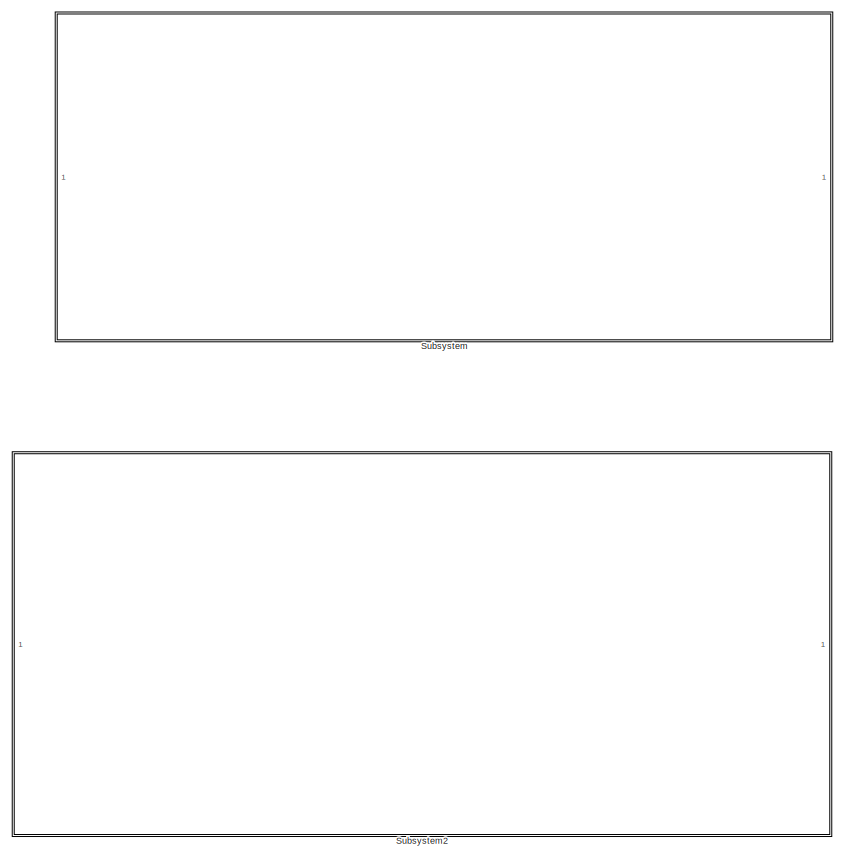
[diagram: root canvas - part 1/3, top left region]
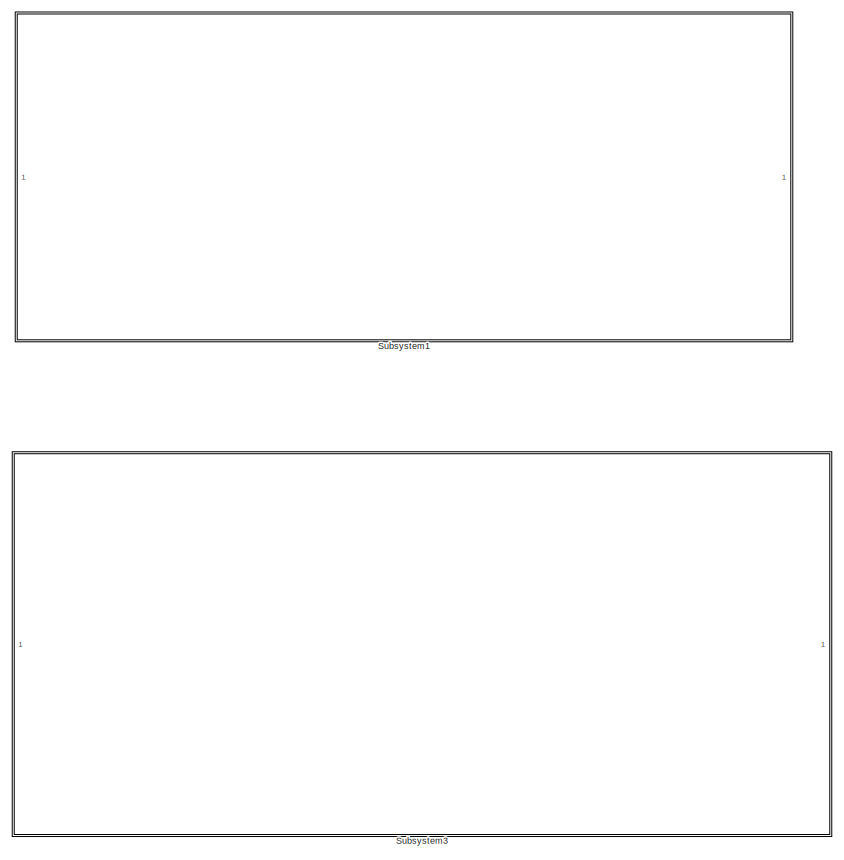
[diagram: root canvas - part 2/3, top right region]
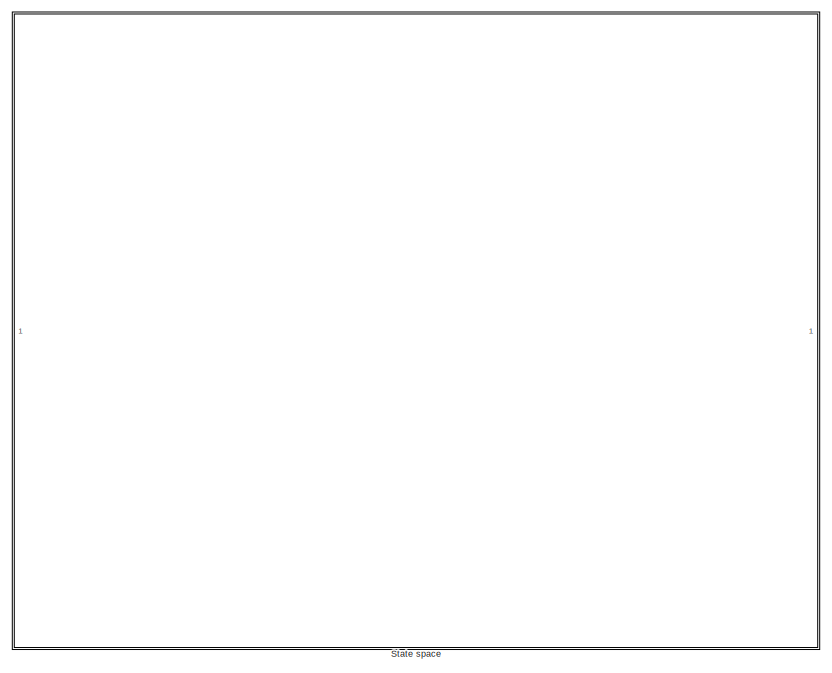
[diagram: root canvas - part 3/3, bottom right region]
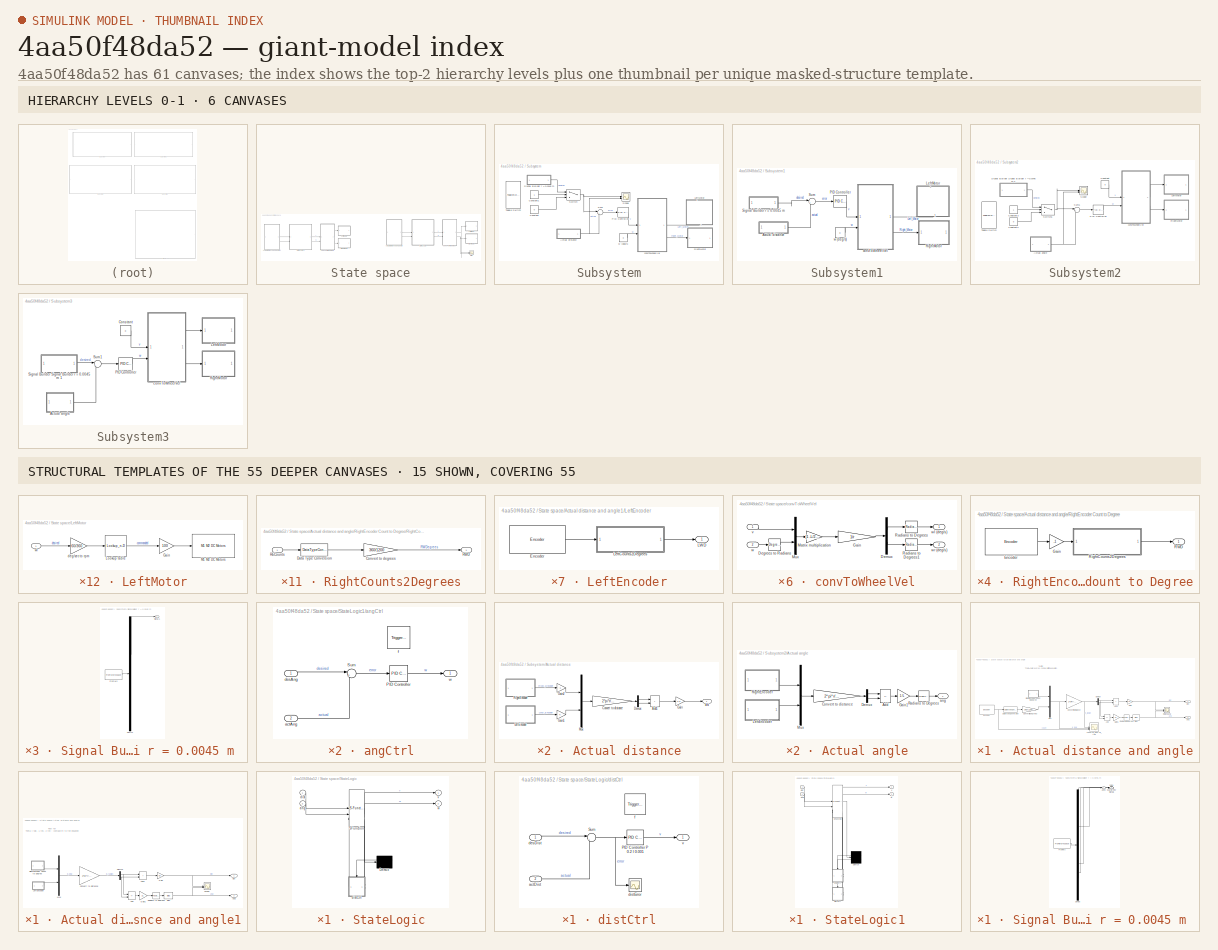
[diagram: thumbnail index - top-2 hierarchy levels (6 canvases) + 15 structural-template representatives of the remaining 55 canvases]
MODEL slx_4aa50f48da52
KIND model
CONFIG AbsTol = auto
CONFIG EnableMultiTasking = on
CONFIG FixedStep = TS
CONFIG MaxStep = auto
CONFIG MinStep = auto
CONFIG PostLoadFcn = params\nload('motorResponse.mat')
CONFIG RelTol = 1e-3
CONFIG SampleTimeConstraint = Unconstrained
CONFIG SolverName = FixedStepAuto
CONFIG StartTime = 0.0
CONFIG StopTime = inf
WORKSPACE source: mxarray member
WORKSPACE TS = 0.01
BLOCK [SubSystem] State space
  Commented = on
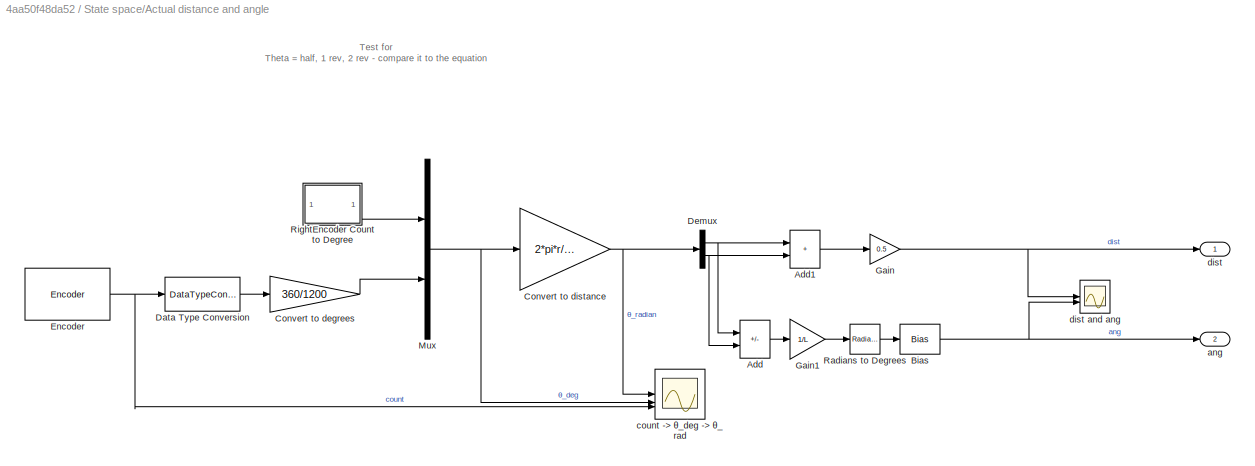
BLOCK [SubSystem] State space/Actual distance and angle
BLOCK [Sum] State space/Actual distance and angle/Add
  IconShape = rectangular
  Inputs = +-
BLOCK [Sum] State space/Actual distance and angle/Add1
  IconShape = rectangular
BLOCK [Bias] State space/Actual distance and angle/Bias
  Bias = StartTheta
  SaturateOnIntegerOverflow = off
BLOCK [Gain] State space/Actual distance and angle/Convert to degrees
  Gain = 360/1200
BLOCK [Gain] State space/Actual distance and angle/Convert to distance
  Gain = 2*pi*r/360
BLOCK [DataTypeConversion] State space/Actual distance and angle/Data Type Conversion
  OutDataTypeStr = double
  RndMeth = Floor
  SaturateOnIntegerOverflow = off
BLOCK [Demux] State space/Actual distance and angle/Demux
  Outputs = 2
BLOCK [Reference] State space/Actual distance and angle/Encoder  REF=arduinomotorcarrierlib/Encoder
  SourceBlock = arduinomotorcarrierlib/Encoder
  SourceType = motorcarrier.blocks.mkrmotorcarrier_Encoder
BLOCK [Gain] State space/Actual distance and angle/Gain
  Gain = 0.5
BLOCK [Gain] State space/Actual distance and angle/Gain1
  Gain = 1/L
BLOCK [Mux] State space/Actual distance and angle/Mux
  DisplayOption = bar
  Inputs = 2
BLOCK [Reference] State space/Actual distance and angle/Radians to Degrees  REF=simulink_extras/Transformations/Radians
to Degrees
  SourceBlock = simulink_extras/Transformations/Radians\nto Degrees
  SourceType = RadiansToDegrees
BLOCK [SubSystem] State space/Actual distance and angle/RightEncoder Count to Degree
BLOCK [Reference] State space/Actual distance and angle/RightEncoder Count to Degree/Encoder  REF=arduinomotorcarrierlib/Encoder
  SourceBlock = arduinomotorcarrierlib/Encoder
  SourceType = motorcarrier.blocks.mkrmotorcarrier_Encoder
BLOCK [Gain] State space/Actual distance and angle/RightEncoder Count to Degree/Gain
  Gain = -1
BLOCK [Outport] State space/Actual distance and angle/RightEncoder Count to Degree/RWD
  VectorParamsAs1DForOutWhenUnconnected = off
BLOCK [SubSystem] State space/Actual distance and angle/RightEncoder Count to Degree/RightCounts2Degrees
BLOCK [Gain] State space/Actual distance and angle/RightEncoder Count to Degree/RightCounts2Degrees/Convert to degrees
  Gain = 360/1200
BLOCK [DataTypeConversion] State space/Actual distance and angle/RightEncoder Count to Degree/RightCounts2Degrees/Data Type Conversion
  OutDataTypeStr = double
  RndMeth = Floor
  SaturateOnIntegerOverflow = off
BLOCK [Inport] State space/Actual distance and angle/RightEncoder Count to Degree/RightCounts2Degrees/RECounts
BLOCK [Outport] State space/Actual distance and angle/RightEncoder Count to Degree/RightCounts2Degrees/RWD
  VectorParamsAs1DForOutWhenUnconnected = off
BLOCK [Outport] State space/Actual distance and angle/ang
  Port = 2
  VectorParamsAs1DForOutWhenUnconnected = off
BLOCK [Scope] State space/Actual distance and angle/count -> θ_deg -> θ_rad
  Floating = off
  NumInputPorts = 3
  ScopeSpecificationString = Simulink.scopes.TimeScopeBlockCfg('CurrentConfiguration', extmgr.ConfigurationSet(extmgr.Configuration('Core','General UI',true),extmgr.Configuration('Core','Source UI',true),extmgr.Configuration('Sources','WiredSimulink',true,'DataLoggingVariableName','ScopeData2'),extmgr.Configuration('Visuals','Time Domain',true,'SerializedDisplays',{struct('MinYLimReal','41.80773','MaxYLimReal','65.28131','YLa...<+2305ch>
BLOCK [Outport] State space/Actual distance and angle/dist
  VectorParamsAs1DForOutWhenUnconnected = off
BLOCK [Scope] State space/Actual distance and angle/dist and ang
  Floating = off
  NumInputPorts = 2
  ScopeSpecificationString = Simulink.scopes.TimeScopeBlockCfg('CurrentConfiguration', extmgr.ConfigurationSet(extmgr.Configuration('Core','General UI',true),extmgr.Configuration('Core','Source UI',true),extmgr.Configuration('Sources','WiredSimulink',true),extmgr.Configuration('Visuals','Time Domain',true,'SerializedDisplays',{struct('MinYLimReal','43.54452','MaxYLimReal','63.54452','YLabelReal','','MinYLimMag','43.54452','Ma...<+2201ch>
BLOCK [SubSystem] State space/Actual distance and angle1
BLOCK [Sum] State space/Actual distance and angle1/Add
  IconShape = rectangular
  Inputs = +-
BLOCK [Sum] State space/Actual distance and angle1/Add1
  IconShape = rectangular
BLOCK [Bias] State space/Actual distance and angle1/Bias
  Bias = StartTheta
  SaturateOnIntegerOverflow = off
BLOCK [Gain] State space/Actual distance and angle1/Convert to distance
  Gain = 2*pi*r/360
BLOCK [Demux] State space/Actual distance and angle1/Demux
  Outputs = 2
BLOCK [Gain] State space/Actual distance and angle1/Gain
  Gain = 0.5
BLOCK [Gain] State space/Actual distance and angle1/Gain1
  Gain = 1/L
BLOCK [SubSystem] State space/Actual distance and angle1/LeftEncoder
BLOCK [Reference] State space/Actual distance and angle1/LeftEncoder/Encoder  REF=arduinomotorcarrierlib/Encoder
  SourceBlock = arduinomotorcarrierlib/Encoder
  SourceType = motorcarrier.blocks.mkrmotorcarrier_Encoder
BLOCK [Outport] State space/Actual distance and angle1/LeftEncoder/LWD
  VectorParamsAs1DForOutWhenUnconnected = off
BLOCK [SubSystem] State space/Actual distance and angle1/LeftEncoder/LeftCounts2Degrees
BLOCK [Gain] State space/Actual distance and angle1/LeftEncoder/LeftCounts2Degrees/Convert to degrees
  Gain = 360/1200
BLOCK [DataTypeConversion] State space/Actual distance and angle1/LeftEncoder/LeftCounts2Degrees/Data Type Conversion
  OutDataTypeStr = double
  RndMeth = Floor
  SaturateOnIntegerOverflow = off
BLOCK [Inport] State space/Actual distance and angle1/LeftEncoder/LeftCounts2Degrees/LECounts
BLOCK [Outport] State space/Actual distance and angle1/LeftEncoder/LeftCounts2Degrees/LWD
  VectorParamsAs1DForOutWhenUnconnected = off
BLOCK [Mux] State space/Actual distance and angle1/Mux
  DisplayOption = bar
  Inputs = 2
BLOCK [Reference] State space/Actual distance and angle1/Radians to Degrees  REF=simulink_extras/Transformations/Radians
to Degrees
  SourceBlock = simulink_extras/Transformations/Radians\nto Degrees
  SourceType = RadiansToDegrees
BLOCK [SubSystem] State space/Actual distance and angle1/RightEncoder Count to Degree
BLOCK [Reference] State space/Actual distance and angle1/RightEncoder Count to Degree/Encoder  REF=arduinomotorcarrierlib/Encoder
  SourceBlock = arduinomotorcarrierlib/Encoder
  SourceType = motorcarrier.blocks.mkrmotorcarrier_Encoder
BLOCK [Gain] State space/Actual distance and angle1/RightEncoder Count to Degree/Gain
  Gain = -1
BLOCK [Outport] State space/Actual distance and angle1/RightEncoder Count to Degree/RWD
  VectorParamsAs1DForOutWhenUnconnected = off
BLOCK [SubSystem] State space/Actual distance and angle1/RightEncoder Count to Degree/RightCounts2Degrees
BLOCK [Gain] State space/Actual distance and angle1/RightEncoder Count to Degree/RightCounts2Degrees/Convert to degrees
  Gain = 360/1200
BLOCK [DataTypeConversion] State space/Actual distance and angle1/RightEncoder Count to Degree/RightCounts2Degrees/Data Type Conversion
  OutDataTypeStr = double
  RndMeth = Floor
  SaturateOnIntegerOverflow = off
BLOCK [Inport] State space/Actual distance and angle1/RightEncoder Count to Degree/RightCounts2Degrees/RECounts
BLOCK [Outport] State space/Actual distance and angle1/RightEncoder Count to Degree/RightCounts2Degrees/RWD
  VectorParamsAs1DForOutWhenUnconnected = off
BLOCK [Scope] State space/Actual distance and angle1/Scope
  Floating = off
  NumInputPorts = 2
  ScopeSpecificationString = Simulink.scopes.TimeScopeBlockCfg('CurrentConfiguration', extmgr.ConfigurationSet(extmgr.Configuration('Core','General UI',true),extmgr.Configuration('Core','Source UI',true),extmgr.Configuration('Sources','WiredSimulink',true),extmgr.Configuration('Visuals','Time Domain',true,'SerializedDisplays',{struct('MinYLimReal','-0.45209','MaxYLimReal','4.06885','YLabelReal','','MinYLimMag','0.00000','MaxY...<+2168ch>
BLOCK [Outport] State space/Actual distance and angle1/ang
  Port = 2
  VectorParamsAs1DForOutWhenUnconnected = off
BLOCK [Outport] State space/Actual distance and angle1/dist
  VectorParamsAs1DForOutWhenUnconnected = off
BLOCK [SubSystem] State space/LeftMotor
BLOCK [Gain] State space/LeftMotor/Gain
  Gain = 100
BLOCK [Lookup_n-D] State space/LeftMotor/Lookup table
  BreakpointsForDimension1 = speedMono
  InputPortMap = u0
  InternalRulePriority = Speed
  NumberOfTableDimensions = 1
  RndMeth = Simplest
  Table = PWMcmdMono
  UseLastTableValue = on
BLOCK [Reference] State space/LeftMotor/M1 M2 DC Motors  REF=arduinomotorcarrierlib/M1 M2 DC Motors
  SourceBlock = arduinomotorcarrierlib/M1 M2 DC Motors
  SourceType = DC Motor
BLOCK [Gain] State space/LeftMotor/deg//sec to rpm
  Gain = 60/360
BLOCK [Inport] State space/LeftMotor/wl
BLOCK [SubSystem] State space/LeftMotor1
BLOCK [Gain] State space/LeftMotor1/Gain
  Gain = 100
BLOCK [Lookup_n-D] State space/LeftMotor1/Lookup table
  BreakpointsForDimension1 = speedMono
  InputPortMap = u0
  InternalRulePriority = Speed
  NumberOfTableDimensions = 1
  RndMeth = Simplest
  Table = PWMcmdMono
  UseLastTableValue = on
BLOCK [Reference] State space/LeftMotor1/M1 M2 DC Motors  REF=arduinomotorcarrierlib/M1 M2 DC Motors
  SourceBlock = arduinomotorcarrierlib/M1 M2 DC Motors
  SourceType = DC Motor
BLOCK [Gain] State space/LeftMotor1/deg//sec to rpm
  Gain = 60/360
BLOCK [Inport] State space/LeftMotor1/wl
BLOCK [SubSystem] State space/RightMotor
BLOCK [Gain] State space/RightMotor/Gain
  Gain = -100
BLOCK [Lookup_n-D] State space/RightMotor/Lookup table
  BreakpointsForDimension1 = speedMono
  InputPortMap = u0
  InternalRulePriority = Speed
  NumberOfTableDimensions = 1
  RndMeth = Simplest
  Table = PWMcmdMono
  UseLastTableValue = on
BLOCK [Reference] State space/RightMotor/M1 M2 DC Motors  REF=arduinomotorcarrierlib/M1 M2 DC Motors
  SourceBlock = arduinomotorcarrierlib/M1 M2 DC Motors
  SourceType = DC Motor
BLOCK [Gain] State space/RightMotor/deg//sec to RPM
  Gain = 60/360
BLOCK [Inport] State space/RightMotor/wr
BLOCK [SubSystem] State space/RightMotor1
BLOCK [Gain] State space/RightMotor1/Gain
  Gain = -100
BLOCK [Lookup_n-D] State space/RightMotor1/Lookup table
  BreakpointsForDimension1 = speedMono
  InputPortMap = u0
  InternalRulePriority = Speed
  NumberOfTableDimensions = 1
  RndMeth = Simplest
  Table = PWMcmdMono
  UseLastTableValue = on
BLOCK [Reference] State space/RightMotor1/M1 M2 DC Motors  REF=arduinomotorcarrierlib/M1 M2 DC Motors
  SourceBlock = arduinomotorcarrierlib/M1 M2 DC Motors
  SourceType = DC Motor
BLOCK [Gain] State space/RightMotor1/deg//sec to RPM
  Gain = 60/360
BLOCK [Inport] State space/RightMotor1/wr
BLOCK [SubSystem] State space/StateLogic
  ErrorFcn = Stateflow.Translate.translate
  PermitHierarchicalResolution = ExplicitOnly
  SFBlockType = Chart
  TreatAsAtomicUnit = on
BLOCK [Demux] State space/StateLogic/ Demux 
  Outputs = 1
BLOCK [S-Function] State space/StateLogic/ SFunction 
  EnableBusSupport = on
  FunctionName = sf_sfun
  PortCounts = [3 5]
  SFcnIsStateOwnerBlock = off
  SFunctionDeploymentMode = off
  Tag = Stateflow S-Function 3
BLOCK [Inport] State space/StateLogic/ang
  Port = 2
BLOCK [Inport] State space/StateLogic/dist
BLOCK [SubSystem] State space/StateLogic/distCtrl
  PreDeleteFcn = Stateflow.SLINSF.SimulinkMan.removePreDeleteFcn
  UndoDeleteFcn = Stateflow.SLINSF.SimulinkMan.restorePreDeleteFcn
BLOCK [Reference] State space/StateLogic/distCtrl/PID Controller P 0.2 I 0.001  REF=slpidlib/PID Controller
  SourceBlock = slpidlib/PID Controller
  SourceType = PID 1dof
BLOCK [Sum] State space/StateLogic/distCtrl/Sum
  Inputs = |+-
BLOCK [Inport] State space/StateLogic/distCtrl/actDist
  OutDataTypeStr = double
  Port = 2
  PortDimensions = 1
  SignalType = real
  VarSizeSig = No
BLOCK [Inport] State space/StateLogic/distCtrl/desDist
  OutDataTypeStr = double
  PortDimensions = 1
  SignalType = real
  VarSizeSig = No
BLOCK [Scope] State space/StateLogic/distCtrl/distError
  Floating = off
  NumInputPorts = 1
  ScopeSpecificationString = Simulink.scopes.TimeScopeBlockCfg('CurrentConfiguration', extmgr.ConfigurationSet(extmgr.Configuration('Core','General UI',true),extmgr.Configuration('Core','Source UI',true),extmgr.Configuration('Sources','WiredSimulink',true,'DataLoggingVariableName','ScopeData1'),extmgr.Configuration('Visuals','Time Domain',true,'SerializedDisplays',{struct('MinYLimReal','-6.25','MaxYLimReal','56.25','YLabelRea...<+1495ch>
BLOCK [TriggerPort] State space/StateLogic/distCtrl/f
  CopyFcn = Stateflow.SLINSF.SimulinkMan.removeBlockPreDeleteFcn
  PreDeleteFcn = Stateflow.SLINSF.SimulinkMan.unsafePredeleteFcn
  StatesWhenEnabling = held
  TriggerType = function-call
  VariantControl = (inherit)
BLOCK [Outport] State space/StateLogic/distCtrl/v
  VectorParamsAs1DForOutWhenUnconnected = off
BLOCK [Outport] State space/StateLogic/v
  VectorParamsAs1DForOutWhenUnconnected = off
BLOCK [Outport] State space/StateLogic/w
  Port = 2
  VectorParamsAs1DForOutWhenUnconnected = off
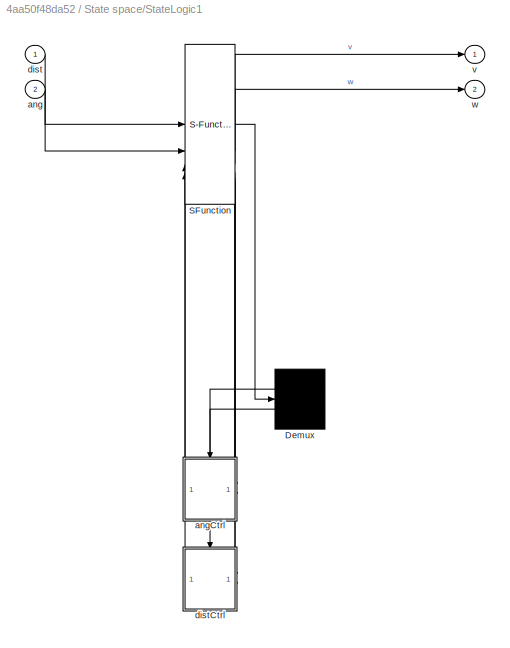
BLOCK [SubSystem] State space/StateLogic1
  ErrorFcn = Stateflow.Translate.translate
  PermitHierarchicalResolution = ExplicitOnly
  SFBlockType = Chart
  TreatAsAtomicUnit = on
BLOCK [Demux] State space/StateLogic1/ Demux 
  Outputs = 2
BLOCK [S-Function] State space/StateLogic1/ SFunction 
  EnableBusSupport = off
  FunctionName = sf_sfun
  PortCounts = [4 7]
  SFcnIsStateOwnerBlock = off
  SFunctionDeploymentMode = off
  Tag = Stateflow S-Function 1
BLOCK [Inport] State space/StateLogic1/ang
  Port = 2
BLOCK [SubSystem] State space/StateLogic1/angCtrl
  PreDeleteFcn = Stateflow.SLINSF.SimulinkMan.removePreDeleteFcn
  UndoDeleteFcn = Stateflow.SLINSF.SimulinkMan.restorePreDeleteFcn
BLOCK [Reference] State space/StateLogic1/angCtrl/PID Controller  REF=slpidlib/PID Controller
  SourceBlock = slpidlib/PID Controller
  SourceType = PID 1dof
BLOCK [Sum] State space/StateLogic1/angCtrl/Sum
  Inputs = |+-
BLOCK [Inport] State space/StateLogic1/angCtrl/actAng
  OutDataTypeStr = double
  Port = 2
  PortDimensions = 1
  SignalType = real
  VarSizeSig = No
BLOCK [Inport] State space/StateLogic1/angCtrl/desAng
  OutDataTypeStr = double
  PortDimensions = 1
  SignalType = real
  VarSizeSig = No
BLOCK [TriggerPort] State space/StateLogic1/angCtrl/f
  CopyFcn = Stateflow.SLINSF.SimulinkMan.removeBlockPreDeleteFcn
  PreDeleteFcn = Stateflow.SLINSF.SimulinkMan.unsafePredeleteFcn
  StatesWhenEnabling = held
  TriggerType = function-call
  VariantControl = (inherit)
BLOCK [Outport] State space/StateLogic1/angCtrl/w
  VectorParamsAs1DForOutWhenUnconnected = off
BLOCK [Inport] State space/StateLogic1/dist
BLOCK [SubSystem] State space/StateLogic1/distCtrl
  PreDeleteFcn = Stateflow.SLINSF.SimulinkMan.removePreDeleteFcn
  UndoDeleteFcn = Stateflow.SLINSF.SimulinkMan.restorePreDeleteFcn
BLOCK [Reference] State space/StateLogic1/distCtrl/PID Controller  REF=slpidlib/PID Controller
  SourceBlock = slpidlib/PID Controller
  SourceType = PID 1dof
BLOCK [Sum] State space/StateLogic1/distCtrl/Sum
  Inputs = |+-
BLOCK [Inport] State space/StateLogic1/distCtrl/actDist
  OutDataTypeStr = double
  Port = 2
  PortDimensions = 1
  SignalType = real
  VarSizeSig = No
BLOCK [Inport] State space/StateLogic1/distCtrl/desDist
  OutDataTypeStr = double
  PortDimensions = 1
  SignalType = real
  VarSizeSig = No
BLOCK [TriggerPort] State space/StateLogic1/distCtrl/f
  CopyFcn = Stateflow.SLINSF.SimulinkMan.removeBlockPreDeleteFcn
  PreDeleteFcn = Stateflow.SLINSF.SimulinkMan.unsafePredeleteFcn
  StatesWhenEnabling = held
  TriggerType = function-call
  VariantControl = (inherit)
BLOCK [Outport] State space/StateLogic1/distCtrl/v
  VectorParamsAs1DForOutWhenUnconnected = off
BLOCK [Outport] State space/StateLogic1/v
  VectorParamsAs1DForOutWhenUnconnected = off
BLOCK [Outport] State space/StateLogic1/w
  Port = 2
  VectorParamsAs1DForOutWhenUnconnected = off
BLOCK [SubSystem] State space/convToWheelVel
BLOCK [Gain] State space/convToWheelVel/ Gain
  Gain = 1/r
  Multiplication = Matrix(K*u)
BLOCK [Reference] State space/convToWheelVel/Degrees to Radians  REF=simulink_extras/Transformations/Degrees to
Radians
  SourceBlock = simulink_extras/Transformations/Degrees to\nRadians
  SourceType = DegreesToRadians
BLOCK [Demux] State space/convToWheelVel/Demux
  Outputs = 2
BLOCK [Gain] State space/convToWheelVel/Matrix multiplication
  Gain = [1 -L/2; 1 L/2]
  Multiplication = Matrix(K*u)
BLOCK [Mux] State space/convToWheelVel/Mux
  DisplayOption = bar
  Inputs = 2
BLOCK [Reference] State space/convToWheelVel/Radians to Degrees  REF=simulink_extras/Transformations/Radians
to Degrees
  SourceBlock = simulink_extras/Transformations/Radians\nto Degrees
  SourceType = RadiansToDegrees
BLOCK [Reference] State space/convToWheelVel/Radians to Degrees1  REF=simulink_extras/Transformations/Radians
to Degrees
  SourceBlock = simulink_extras/Transformations/Radians\nto Degrees
  SourceType = RadiansToDegrees
BLOCK [Inport] State space/convToWheelVel/v
BLOCK [Inport] State space/convToWheelVel/w
  Port = 2
BLOCK [Outport] State space/convToWheelVel/wl (deg//s)
  VectorParamsAs1DForOutWhenUnconnected = off
BLOCK [Outport] State space/convToWheelVel/wr (deg//s)
  Port = 2
  VectorParamsAs1DForOutWhenUnconnected = off
BLOCK [SubSystem] State space/convToWheelVel1
BLOCK [Gain] State space/convToWheelVel1/ Gain
  Gain = 1/r
  Multiplication = Matrix(K*u)
BLOCK [Reference] State space/convToWheelVel1/Degrees to Radians  REF=simulink_extras/Transformations/Degrees to
Radians
  SourceBlock = simulink_extras/Transformations/Degrees to\nRadians
  SourceType = DegreesToRadians
BLOCK [Demux] State space/convToWheelVel1/Demux
  Outputs = 2
BLOCK [Gain] State space/convToWheelVel1/Matrix multiplication
  Gain = [1 -L/2; 1 L/2]
  Multiplication = Matrix(K*u)
BLOCK [Mux] State space/convToWheelVel1/Mux
  DisplayOption = bar
  Inputs = 2
BLOCK [Reference] State space/convToWheelVel1/Radians to Degrees  REF=simulink_extras/Transformations/Radians
to Degrees
  SourceBlock = simulink_extras/Transformations/Radians\nto Degrees
  SourceType = RadiansToDegrees
BLOCK [Reference] State space/convToWheelVel1/Radians to Degrees1  REF=simulink_extras/Transformations/Radians
to Degrees
  SourceBlock = simulink_extras/Transformations/Radians\nto Degrees
  SourceType = RadiansToDegrees
BLOCK [Inport] State space/convToWheelVel1/v
BLOCK [Inport] State space/convToWheelVel1/w
  Port = 2
BLOCK [Outport] State space/convToWheelVel1/wl (deg//s)
  VectorParamsAs1DForOutWhenUnconnected = off
BLOCK [Outport] State space/convToWheelVel1/wr (deg//s)
  Port = 2
  VectorParamsAs1DForOutWhenUnconnected = off
BLOCK [Scope] State space/wr wl
  Floating = off
  NumInputPorts = 2
  ScopeSpecificationString = Simulink.scopes.TimeScopeBlockCfg('CurrentConfiguration', extmgr.ConfigurationSet(extmgr.Configuration('Core','General UI',true),extmgr.Configuration('Core','Source UI',true),extmgr.Configuration('Sources','WiredSimulink',true,'DataLoggingVariableName','ScopeData1'),extmgr.Configuration('Visuals','Time Domain',true,'SerializedDisplays',{struct('MinYLimReal','-477.8856','MaxYLimReal','4300.97044','...<+1595ch>
BLOCK [SubSystem] Subsystem
  Commented = on
BLOCK [SubSystem] Subsystem/Actual distance
BLOCK [Sum] Subsystem/Actual distance/Add1
  IconShape = rectangular
BLOCK [Gain] Subsystem/Actual distance/Convert to distance
  Gain = 2*pi*r/360
BLOCK [Demux] Subsystem/Actual distance/Demux
  Outputs = 2
BLOCK [Gain] Subsystem/Actual distance/Gain
  Gain = 0.5
BLOCK [Gain] Subsystem/Actual distance/Gain1
BLOCK [Gain] Subsystem/Actual distance/Gain2
  Gain = -1
BLOCK [SubSystem] Subsystem/Actual distance/LeftEncoder
BLOCK [Reference] Subsystem/Actual distance/LeftEncoder/Encoder  REF=arduinomotorcarrierlib/Encoder
  SourceBlock = arduinomotorcarrierlib/Encoder
  SourceType = motorcarrier.blocks.mkrmotorcarrier_Encoder
BLOCK [Outport] Subsystem/Actual distance/LeftEncoder/LWD
  VectorParamsAs1DForOutWhenUnconnected = off
BLOCK [SubSystem] Subsystem/Actual distance/LeftEncoder/LeftCounts2Degrees
BLOCK [Gain] Subsystem/Actual distance/LeftEncoder/LeftCounts2Degrees/Convert to degrees
  Gain = 360/1200
BLOCK [DataTypeConversion] Subsystem/Actual distance/LeftEncoder/LeftCounts2Degrees/Data Type Conversion
  OutDataTypeStr = double
  RndMeth = Floor
  SaturateOnIntegerOverflow = off
BLOCK [Inport] Subsystem/Actual distance/LeftEncoder/LeftCounts2Degrees/LECounts
BLOCK [Outport] Subsystem/Actual distance/LeftEncoder/LeftCounts2Degrees/LWD
  VectorParamsAs1DForOutWhenUnconnected = off
BLOCK [Mux] Subsystem/Actual distance/Mux
  DisplayOption = bar
  Inputs = 2
BLOCK [SubSystem] Subsystem/Actual distance/RightEncoder
BLOCK [Reference] Subsystem/Actual distance/RightEncoder/Encoder  REF=arduinomotorcarrierlib/Encoder
  SourceBlock = arduinomotorcarrierlib/Encoder
  SourceType = motorcarrier.blocks.mkrmotorcarrier_Encoder
BLOCK [Outport] Subsystem/Actual distance/RightEncoder/RWD
  VectorParamsAs1DForOutWhenUnconnected = off
BLOCK [SubSystem] Subsystem/Actual distance/RightEncoder/RightCounts2Degrees
BLOCK [Gain] Subsystem/Actual distance/RightEncoder/RightCounts2Degrees/Convert to degrees
  Gain = 360/1200
BLOCK [DataTypeConversion] Subsystem/Actual distance/RightEncoder/RightCounts2Degrees/Data Type Conversion
  OutDataTypeStr = double
  RndMeth = Floor
  SaturateOnIntegerOverflow = off
BLOCK [Inport] Subsystem/Actual distance/RightEncoder/RightCounts2Degrees/RECounts
BLOCK [Outport] Subsystem/Actual distance/RightEncoder/RightCounts2Degrees/RWD
  VectorParamsAs1DForOutWhenUnconnected = off
BLOCK [Outport] Subsystem/Actual distance/dist
  VectorParamsAs1DForOutWhenUnconnected = off
BLOCK [Constant] Subsystem/Constant
  Value = 0
BLOCK [Constant] Subsystem/Constant1
BLOCK [SubSystem] Subsystem/LeftMotor
  NameLocation = left
  PortSchema = {"entries":[{"content":{"sides":[{"content":{"connectorIds":[]},"type":"ConnectorPlacement.EquallySpacedRectSide","uuid":"6b240029-b7b2-4aa8-8af5-bcdc90edccb3"},{"content":{"connectorIds":[],"side":"RIGHT"},"type":"ConnectorPlacement.EquallySpacedRectSide","uuid":"1a2d11e5-5b26-4193-8988-f8fe1e33b39d"},{"content":{"connectorIds":[],"side":"TOP"},"type":"ConnectorPlacement.EquallySpacedRectSide","u...<+380ch>
BLOCK [Lookup_n-D] Subsystem/LeftMotor/Lookup table
  BreakpointsForDimension1 = speedMono
  InputPortMap = u0
  InternalRulePriority = Speed
  NumberOfTableDimensions = 1
  RndMeth = Simplest
  Table = PWMcmdMono
  UseLastTableValue = on
BLOCK [Reference] Subsystem/LeftMotor/M1 M2 DC Motors  REF=arduinomotorcarrierlib/M1 M2 DC Motors
  SourceBlock = arduinomotorcarrierlib/M1 M2 DC Motors
  SourceType = DC Motor
BLOCK [Gain] Subsystem/LeftMotor/Multiply
  Gain = 100
BLOCK [Gain] Subsystem/LeftMotor/deg//sec to rpm
  Gain = 60/360
BLOCK [Inport] Subsystem/LeftMotor/wl
BLOCK [Reference] Subsystem/PID Controller   REF=slpidlib/PID Controller
  SourceBlock = slpidlib/PID Controller
  SourceType = PID 1dof
BLOCK [SubSystem] Subsystem/RightMotor
BLOCK [Lookup_n-D] Subsystem/RightMotor/Lookup table
  BreakpointsForDimension1 = speedMono
  InputPortMap = u0
  InternalRulePriority = Speed
  NumberOfTableDimensions = 1
  RndMeth = Simplest
  Table = PWMcmdMono
  UseLastTableValue = on
BLOCK [Reference] Subsystem/RightMotor/M1 M2 DC Motors  REF=arduinomotorcarrierlib/M1 M2 DC Motors
  SourceBlock = arduinomotorcarrierlib/M1 M2 DC Motors
  SourceType = DC Motor
BLOCK [Gain] Subsystem/RightMotor/Multiply
  Gain = -100
BLOCK [Gain] Subsystem/RightMotor/deg//sec to rpm
  Gain = 60/360
BLOCK [Inport] Subsystem/RightMotor/wr
BLOCK [Scope] Subsystem/Scope
  Floating = off
  NumInputPorts = 2
  ScopeSpecificationString = Simulink.scopes.TimeScopeBlockCfg('CurrentConfiguration', extmgr.ConfigurationSet(extmgr.Configuration('Core','General UI',true),extmgr.Configuration('Core','Source UI',true),extmgr.Configuration('Sources','WiredSimulink',true,'DataLoggingVariableName','ScopeData1'),extmgr.Configuration('Visuals','Time Domain',true,'SerializedDisplays',{struct('MinYLimReal','-4.32951','MaxYLimReal','28.83393','YLa...<+2419ch>
BLOCK [SubSystem] Subsystem/Signal Builder r = 0.0045 m 
  ClipboardFcn = sigbuilder_block('clipboard');
  CloseFcn = sigbuilder_block('close');
  ContinueFcn = sigbuilder_block('continue');
  CopyFcn = sigbuilder_block('copy');
  DeleteFcn = sigbuilder_block('delete');
  LoadFcn = sigbuilder_block('load');
  MaskHideContents = on
  ModelCloseFcn = sigbuilder_block('modelClose');
  NameChangeFcn = sigbuilder_block('namechange');
  OpenFcn = sigbuilder_block('open',[5.25 125.25 660.75 283.5 ]);
  PauseFcn = sigbuilder_block('pause');
  PreSaveFcn = sigbuilder_block('preSave');
  StartFcn = sigbuilder_block('start');
  StopFcn = sigbuilder_block('stop');
  Tag = STV Subsys
BLOCK [Demux] Subsystem/Signal Builder r = 0.0045 m /Demux
  DisplayOption = none
  Outputs = 1
  Tag = STV Demux
BLOCK [FromWorkspace] Subsystem/Signal Builder r = 0.0045 m /FromWs
  Tag = STV FromWs
  VariableName = tuvar
BLOCK [Outport] Subsystem/Signal Builder r = 0.0045 m /Signal 1
  Tag = STV Outport
  VectorParamsAs1DForOutWhenUnconnected = off
BLOCK [Sum] Subsystem/Sum
  Inputs = |+-
BLOCK [Switch] Subsystem/Switch
  Criteria = u2 > Threshold
  InputSameDT = off
  SaturateOnIntegerOverflow = off
BLOCK [ToggleSwitchBlock] Subsystem/Toggle Switch
BLOCK [SubSystem] Subsystem/convToWheelVel
BLOCK [Gain] Subsystem/convToWheelVel/ Gain
  Gain = 1/r
  Multiplication = Matrix(K*u)
BLOCK [Reference] Subsystem/convToWheelVel/Degrees to Radians  REF=simulink_extras/Transformations/Degrees to
Radians
  SourceBlock = simulink_extras/Transformations/Degrees to\nRadians
  SourceType = DegreesToRadians
BLOCK [Demux] Subsystem/convToWheelVel/Demux
  Outputs = 2
BLOCK [Gain] Subsystem/convToWheelVel/Matrix multiplication
  Gain = [1 -L/2; 1 L/2]
  Multiplication = Matrix(K*u)
BLOCK [Mux] Subsystem/convToWheelVel/Mux
  DisplayOption = bar
  Inputs = 2
BLOCK [Reference] Subsystem/convToWheelVel/Radians to Degrees  REF=simulink_extras/Transformations/Radians
to Degrees
  SourceBlock = simulink_extras/Transformations/Radians\nto Degrees
  SourceType = RadiansToDegrees
BLOCK [Reference] Subsystem/convToWheelVel/Radians to Degrees1  REF=simulink_extras/Transformations/Radians
to Degrees
  SourceBlock = simulink_extras/Transformations/Radians\nto Degrees
  SourceType = RadiansToDegrees
BLOCK [Inport] Subsystem/convToWheelVel/v
BLOCK [Inport] Subsystem/convToWheelVel/w
  Port = 2
BLOCK [Outport] Subsystem/convToWheelVel/wl (deg//s)
  VectorParamsAs1DForOutWhenUnconnected = off
BLOCK [Outport] Subsystem/convToWheelVel/wr (deg//s)
  Port = 2
  VectorParamsAs1DForOutWhenUnconnected = off
BLOCK [Constant] Subsystem/w (deg//s)
  Value = 0
BLOCK [SubSystem] Subsystem1
  Commented = on
BLOCK [SubSystem] Subsystem1/Actual distance
BLOCK [Sum] Subsystem1/Actual distance/Add1
  IconShape = rectangular
BLOCK [Gain] Subsystem1/Actual distance/Convert to distance
  Gain = 2*pi*r/360
BLOCK [Demux] Subsystem1/Actual distance/Demux
  Outputs = 2
BLOCK [Gain] Subsystem1/Actual distance/Gain
  Gain = 0.5
BLOCK [Gain] Subsystem1/Actual distance/Gain1
BLOCK [Gain] Subsystem1/Actual distance/Gain2
  Gain = -1
BLOCK [SubSystem] Subsystem1/Actual distance/LeftEncoder
BLOCK [Reference] Subsystem1/Actual distance/LeftEncoder/Encoder  REF=arduinomotorcarrierlib/Encoder
  SourceBlock = arduinomotorcarrierlib/Encoder
  SourceType = motorcarrier.blocks.mkrmotorcarrier_Encoder
BLOCK [Outport] Subsystem1/Actual distance/LeftEncoder/LWD
  VectorParamsAs1DForOutWhenUnconnected = off
BLOCK [SubSystem] Subsystem1/Actual distance/LeftEncoder/LeftCounts2Degrees
BLOCK [Gain] Subsystem1/Actual distance/LeftEncoder/LeftCounts2Degrees/Convert to degrees
  Gain = 360/1200
BLOCK [DataTypeConversion] Subsystem1/Actual distance/LeftEncoder/LeftCounts2Degrees/Data Type Conversion
  OutDataTypeStr = double
  RndMeth = Floor
  SaturateOnIntegerOverflow = off
BLOCK [Inport] Subsystem1/Actual distance/LeftEncoder/LeftCounts2Degrees/LECounts
BLOCK [Outport] Subsystem1/Actual distance/LeftEncoder/LeftCounts2Degrees/LWD
  VectorParamsAs1DForOutWhenUnconnected = off
BLOCK [Mux] Subsystem1/Actual distance/Mux
  DisplayOption = bar
  Inputs = 2
BLOCK [SubSystem] Subsystem1/Actual distance/RightEncoder
BLOCK [Reference] Subsystem1/Actual distance/RightEncoder/Encoder  REF=arduinomotorcarrierlib/Encoder
  SourceBlock = arduinomotorcarrierlib/Encoder
  SourceType = motorcarrier.blocks.mkrmotorcarrier_Encoder
BLOCK [Outport] Subsystem1/Actual distance/RightEncoder/RWD
  VectorParamsAs1DForOutWhenUnconnected = off
BLOCK [SubSystem] Subsystem1/Actual distance/RightEncoder/RightCounts2Degrees
BLOCK [Gain] Subsystem1/Actual distance/RightEncoder/RightCounts2Degrees/Convert to degrees
  Gain = 360/1200
BLOCK [DataTypeConversion] Subsystem1/Actual distance/RightEncoder/RightCounts2Degrees/Data Type Conversion
  OutDataTypeStr = double
  RndMeth = Floor
  SaturateOnIntegerOverflow = off
BLOCK [Inport] Subsystem1/Actual distance/RightEncoder/RightCounts2Degrees/RECounts
BLOCK [Outport] Subsystem1/Actual distance/RightEncoder/RightCounts2Degrees/RWD
  VectorParamsAs1DForOutWhenUnconnected = off
BLOCK [Outport] Subsystem1/Actual distance/dist
  VectorParamsAs1DForOutWhenUnconnected = off
BLOCK [SubSystem] Subsystem1/LeftMotor
  NameLocation = left
  PortSchema = {"entries":[{"content":{"sides":[{"content":{"connectorIds":[]},"type":"ConnectorPlacement.EquallySpacedRectSide","uuid":"6b240029-b7b2-4aa8-8af5-bcdc90edccb3"},{"content":{"connectorIds":[],"side":"RIGHT"},"type":"ConnectorPlacement.EquallySpacedRectSide","uuid":"1a2d11e5-5b26-4193-8988-f8fe1e33b39d"},{"content":{"connectorIds":[],"side":"TOP"},"type":"ConnectorPlacement.EquallySpacedRectSide","u...<+380ch>
BLOCK [Lookup_n-D] Subsystem1/LeftMotor/Lookup table
  BreakpointsForDimension1 = speedMono
  InputPortMap = u0
  InternalRulePriority = Speed
  NumberOfTableDimensions = 1
  RndMeth = Simplest
  Table = PWMcmdMono
  UseLastTableValue = on
BLOCK [Reference] Subsystem1/LeftMotor/M1 M2 DC Motors  REF=arduinomotorcarrierlib/M1 M2 DC Motors
  SourceBlock = arduinomotorcarrierlib/M1 M2 DC Motors
  SourceType = DC Motor
BLOCK [Gain] Subsystem1/LeftMotor/Multiply
  Gain = 100
BLOCK [Gain] Subsystem1/LeftMotor/deg//sec to rpm
  Gain = 60/360
BLOCK [Inport] Subsystem1/LeftMotor/wl
BLOCK [Reference] Subsystem1/PID Controller   REF=slpidlib/PID Controller
  SourceBlock = slpidlib/PID Controller
  SourceType = PID 1dof
BLOCK [SubSystem] Subsystem1/RightMotor
BLOCK [Lookup_n-D] Subsystem1/RightMotor/Lookup table
  BreakpointsForDimension1 = speedMono
  InputPortMap = u0
  InternalRulePriority = Speed
  NumberOfTableDimensions = 1
  RndMeth = Simplest
  Table = PWMcmdMono
  UseLastTableValue = on
BLOCK [Reference] Subsystem1/RightMotor/M1 M2 DC Motors  REF=arduinomotorcarrierlib/M1 M2 DC Motors
  SourceBlock = arduinomotorcarrierlib/M1 M2 DC Motors
  SourceType = DC Motor
BLOCK [Gain] Subsystem1/RightMotor/Multiply
  Gain = -100
BLOCK [Gain] Subsystem1/RightMotor/deg//sec to rpm
  Gain = 60/360
BLOCK [Inport] Subsystem1/RightMotor/wr
BLOCK [SubSystem] Subsystem1/Signal Builder r = 0.0045 m 
  ClipboardFcn = sigbuilder_block('clipboard');
  CloseFcn = sigbuilder_block('close');
  ContinueFcn = sigbuilder_block('continue');
  CopyFcn = sigbuilder_block('copy');
  DeleteFcn = sigbuilder_block('delete');
  LoadFcn = sigbuilder_block('load');
  MaskHideContents = on
  ModelCloseFcn = sigbuilder_block('modelClose');
  NameChangeFcn = sigbuilder_block('namechange');
  OpenFcn = sigbuilder_block('open',[277.5 102.75 678.75 413.25 ]);
  PauseFcn = sigbuilder_block('pause');
  PreSaveFcn = sigbuilder_block('preSave');
  StartFcn = sigbuilder_block('start');
  StopFcn = sigbuilder_block('stop');
  Tag = STV Subsys
BLOCK [Outport] Subsystem1/Signal Builder r = 0.0045 m /5 Rev
  Port = 3
  Tag = STV Outport
BLOCK [Demux] Subsystem1/Signal Builder r = 0.0045 m /Demux
  DisplayOption = none
  Tag = STV Demux
BLOCK [FromWorkspace] Subsystem1/Signal Builder r = 0.0045 m /FromWs
  Tag = STV FromWs
  VariableName = tuvar
BLOCK [Outport] Subsystem1/Signal Builder r = 0.0045 m /Signal 1
  Port = 4
  Tag = STV Outport
BLOCK [Outport] Subsystem1/Signal Builder r = 0.0045 m /aRev
  Tag = STV Outport
  VectorParamsAs1DForOutWhenUnconnected = off
BLOCK [Outport] Subsystem1/Signal Builder r = 0.0045 m /quarterRev
  Port = 2
  Tag = STV Outport
BLOCK [Sum] Subsystem1/Sum
  Inputs = |+-
BLOCK [SubSystem] Subsystem1/convToWheelVel
BLOCK [Gain] Subsystem1/convToWheelVel/ Gain
  Gain = 1/r
  Multiplication = Matrix(K*u)
BLOCK [Reference] Subsystem1/convToWheelVel/Degrees to Radians  REF=simulink_extras/Transformations/Degrees to
Radians
  SourceBlock = simulink_extras/Transformations/Degrees to\nRadians
  SourceType = DegreesToRadians
BLOCK [Demux] Subsystem1/convToWheelVel/Demux
  Outputs = 2
BLOCK [Gain] Subsystem1/convToWheelVel/Matrix multiplication
  Gain = [1 -L/2; 1 L/2]
  Multiplication = Matrix(K*u)
BLOCK [Mux] Subsystem1/convToWheelVel/Mux
  DisplayOption = bar
  Inputs = 2
BLOCK [Reference] Subsystem1/convToWheelVel/Radians to Degrees  REF=simulink_extras/Transformations/Radians
to Degrees
  SourceBlock = simulink_extras/Transformations/Radians\nto Degrees
  SourceType = RadiansToDegrees
BLOCK [Reference] Subsystem1/convToWheelVel/Radians to Degrees1  REF=simulink_extras/Transformations/Radians
to Degrees
  SourceBlock = simulink_extras/Transformations/Radians\nto Degrees
  SourceType = RadiansToDegrees
BLOCK [Inport] Subsystem1/convToWheelVel/v
BLOCK [Inport] Subsystem1/convToWheelVel/w
  Port = 2
BLOCK [Outport] Subsystem1/convToWheelVel/wl (deg//s)
  VectorParamsAs1DForOutWhenUnconnected = off
BLOCK [Outport] Subsystem1/convToWheelVel/wr (deg//s)
  Port = 2
  VectorParamsAs1DForOutWhenUnconnected = off
BLOCK [Constant] Subsystem1/w (deg//s)
  Value = 0
BLOCK [SubSystem] Subsystem2
  Commented = on
BLOCK [SubSystem] Subsystem2/Actual angle
BLOCK [Sum] Subsystem2/Actual angle/Add
  IconShape = rectangular
  Inputs = +-
BLOCK [Gain] Subsystem2/Actual angle/Convert to distance
  Gain = 2*pi*r/360
BLOCK [Demux] Subsystem2/Actual angle/Demux
  Outputs = 2
BLOCK [Gain] Subsystem2/Actual angle/Gain1
  Gain = 1/L
BLOCK [SubSystem] Subsystem2/Actual angle/LeftEncoder
BLOCK [Reference] Subsystem2/Actual angle/LeftEncoder/Encoder  REF=arduinomotorcarrierlib/Encoder
  SourceBlock = arduinomotorcarrierlib/Encoder
  SourceType = motorcarrier.blocks.mkrmotorcarrier_Encoder
BLOCK [Outport] Subsystem2/Actual angle/LeftEncoder/LWD
  VectorParamsAs1DForOutWhenUnconnected = off
BLOCK [SubSystem] Subsystem2/Actual angle/LeftEncoder/LeftCounts2Degrees
BLOCK [Gain] Subsystem2/Actual angle/LeftEncoder/LeftCounts2Degrees/Convert to degrees
  Gain = 360/1200
BLOCK [DataTypeConversion] Subsystem2/Actual angle/LeftEncoder/LeftCounts2Degrees/Data Type Conversion
  OutDataTypeStr = double
  RndMeth = Floor
  SaturateOnIntegerOverflow = off
BLOCK [Inport] Subsystem2/Actual angle/LeftEncoder/LeftCounts2Degrees/LECounts
BLOCK [Outport] Subsystem2/Actual angle/LeftEncoder/LeftCounts2Degrees/LWD
  VectorParamsAs1DForOutWhenUnconnected = off
BLOCK [Mux] Subsystem2/Actual angle/Mux
  DisplayOption = bar
  Inputs = 2
BLOCK [Reference] Subsystem2/Actual angle/Radians to Degrees  REF=simulink_extras/Transformations/Radians
to Degrees
  SourceBlock = simulink_extras/Transformations/Radians\nto Degrees
  SourceType = RadiansToDegrees
BLOCK [SubSystem] Subsystem2/Actual angle/RightEncoder
BLOCK [Reference] Subsystem2/Actual angle/RightEncoder/Encoder  REF=arduinomotorcarrierlib/Encoder
  SourceBlock = arduinomotorcarrierlib/Encoder
  SourceType = motorcarrier.blocks.mkrmotorcarrier_Encoder
BLOCK [Gain] Subsystem2/Actual angle/RightEncoder/Gain
  Gain = -1
BLOCK [Outport] Subsystem2/Actual angle/RightEncoder/RWD
  VectorParamsAs1DForOutWhenUnconnected = off
BLOCK [SubSystem] Subsystem2/Actual angle/RightEncoder/RightCounts2Degrees
BLOCK [Gain] Subsystem2/Actual angle/RightEncoder/RightCounts2Degrees/Convert to degrees
  Gain = 360/1200
BLOCK [DataTypeConversion] Subsystem2/Actual angle/RightEncoder/RightCounts2Degrees/Data Type Conversion
  OutDataTypeStr = double
  RndMeth = Floor
  SaturateOnIntegerOverflow = off
BLOCK [Inport] Subsystem2/Actual angle/RightEncoder/RightCounts2Degrees/RECounts
BLOCK [Outport] Subsystem2/Actual angle/RightEncoder/RightCounts2Degrees/RWD
  VectorParamsAs1DForOutWhenUnconnected = off
BLOCK [Outport] Subsystem2/Actual angle/ang
  VectorParamsAs1DForOutWhenUnconnected = off
BLOCK [Constant] Subsystem2/Constant
  Value = 0
BLOCK [Constant] Subsystem2/Constant2
  Value = 0
BLOCK [Constant] Subsystem2/Constant3
BLOCK [SubSystem] Subsystem2/LeftMotor
BLOCK [Gain] Subsystem2/LeftMotor/Gain
  Gain = 100
BLOCK [Lookup_n-D] Subsystem2/LeftMotor/Lookup table
  BreakpointsForDimension1 = speedMono
  InputPortMap = u0
  InternalRulePriority = Speed
  NumberOfTableDimensions = 1
  RndMeth = Simplest
  Table = PWMcmdMono
  UseLastTableValue = on
BLOCK [Reference] Subsystem2/LeftMotor/M1 M2 DC Motors  REF=arduinomotorcarrierlib/M1 M2 DC Motors
  SourceBlock = arduinomotorcarrierlib/M1 M2 DC Motors
  SourceType = DC Motor
BLOCK [Gain] Subsystem2/LeftMotor/deg//sec to rpm
  Gain = 60/360
BLOCK [Inport] Subsystem2/LeftMotor/wl
BLOCK [Reference] Subsystem2/PID Controller   REF=slpidlib/PID Controller
  SourceBlock = slpidlib/PID Controller
  SourceType = PID 1dof
BLOCK [SubSystem] Subsystem2/RightMotor
BLOCK [Gain] Subsystem2/RightMotor/Gain
  Gain = -100
BLOCK [Lookup_n-D] Subsystem2/RightMotor/Lookup table
  BreakpointsForDimension1 = speedMono
  InputPortMap = u0
  InternalRulePriority = Speed
  NumberOfTableDimensions = 1
  RndMeth = Simplest
  Table = PWMcmdMono
  UseLastTableValue = on
BLOCK [Reference] Subsystem2/RightMotor/M1 M2 DC Motors  REF=arduinomotorcarrierlib/M1 M2 DC Motors
  SourceBlock = arduinomotorcarrierlib/M1 M2 DC Motors
  SourceType = DC Motor
BLOCK [Gain] Subsystem2/RightMotor/deg//sec to rpm
  Gain = 60/360
BLOCK [Inport] Subsystem2/RightMotor/wr
BLOCK [Scope] Subsystem2/Scope
  Floating = off
  NumInputPorts = 2
  ScopeSpecificationString = Simulink.scopes.TimeScopeBlockCfg('CurrentConfiguration', extmgr.ConfigurationSet(extmgr.Configuration('Core','General UI',true),extmgr.Configuration('Core','Source UI',true),extmgr.Configuration('Sources','WiredSimulink',true,'DataLoggingVariableName','ScopeData1'),extmgr.Configuration('Visuals','Time Domain',true,'SerializedDisplays',{struct('MinYLimReal','85.05662','MaxYLimReal','90.54926','YLa...<+1504ch>
BLOCK [SubSystem] Subsystem2/Signal Builder Signal Builder r = 0.0045 m 1
  ClipboardFcn = sigbuilder_block('clipboard');
  CloseFcn = sigbuilder_block('close');
  ContinueFcn = sigbuilder_block('continue');
  CopyFcn = sigbuilder_block('copy');
  DeleteFcn = sigbuilder_block('delete');
  LoadFcn = sigbuilder_block('load');
  MaskHideContents = on
  ModelCloseFcn = sigbuilder_block('modelClose');
  NameChangeFcn = sigbuilder_block('namechange');
  OpenFcn = sigbuilder_block('open',[256.5 124.5 550.5 399.75 ]);
  PauseFcn = sigbuilder_block('pause');
  PreSaveFcn = sigbuilder_block('preSave');
  StartFcn = sigbuilder_block('start');
  StopFcn = sigbuilder_block('stop');
  Tag = STV Subsys
BLOCK [Demux] Subsystem2/Signal Builder Signal Builder r = 0.0045 m 1/Demux
  DisplayOption = none
  Outputs = 1
  Tag = STV Demux
BLOCK [FromWorkspace] Subsystem2/Signal Builder Signal Builder r = 0.0045 m 1/FromWs
  Tag = STV FromWs
  VariableName = tuvar
BLOCK [Outport] Subsystem2/Signal Builder Signal Builder r = 0.0045 m 1/Signal 1
  Tag = STV Outport
  VectorParamsAs1DForOutWhenUnconnected = off
BLOCK [Sum] Subsystem2/Sum1
  Inputs = |+-
  NameLocation = top
BLOCK [Switch] Subsystem2/Switch1
  Criteria = u2 > Threshold
  InputSameDT = off
  SaturateOnIntegerOverflow = off
BLOCK [ToggleSwitchBlock] Subsystem2/Toggle Switch
BLOCK [SubSystem] Subsystem2/convToWheelVel
BLOCK [Gain] Subsystem2/convToWheelVel/ Gain
  Gain = 1/r
  Multiplication = Matrix(K*u)
BLOCK [Reference] Subsystem2/convToWheelVel/Degrees to Radians  REF=simulink_extras/Transformations/Degrees to
Radians
  SourceBlock = simulink_extras/Transformations/Degrees to\nRadians
  SourceType = DegreesToRadians
BLOCK [Demux] Subsystem2/convToWheelVel/Demux
  Outputs = 2
BLOCK [Gain] Subsystem2/convToWheelVel/Matrix multiplication
  Gain = [1 -L/2; 1 L/2]
  Multiplication = Matrix(K*u)
BLOCK [Mux] Subsystem2/convToWheelVel/Mux
  DisplayOption = bar
  Inputs = 2
BLOCK [Reference] Subsystem2/convToWheelVel/Radians to Degrees  REF=simulink_extras/Transformations/Radians
to Degrees
  SourceBlock = simulink_extras/Transformations/Radians\nto Degrees
  SourceType = RadiansToDegrees
BLOCK [Reference] Subsystem2/convToWheelVel/Radians to Degrees1  REF=simulink_extras/Transformations/Radians
to Degrees
  SourceBlock = simulink_extras/Transformations/Radians\nto Degrees
  SourceType = RadiansToDegrees
BLOCK [Inport] Subsystem2/convToWheelVel/v
BLOCK [Inport] Subsystem2/convToWheelVel/w
  Port = 2
BLOCK [Outport] Subsystem2/convToWheelVel/wl (deg//s)
  VectorParamsAs1DForOutWhenUnconnected = off
BLOCK [Outport] Subsystem2/convToWheelVel/wr (deg//s)
  Port = 2
  VectorParamsAs1DForOutWhenUnconnected = off
BLOCK [SubSystem] Subsystem3
BLOCK [SubSystem] Subsystem3/Actual angle
BLOCK [Sum] Subsystem3/Actual angle/Add
  IconShape = rectangular
  Inputs = +-
BLOCK [Gain] Subsystem3/Actual angle/Convert to distance
  Gain = 2*pi*r/360
BLOCK [Demux] Subsystem3/Actual angle/Demux
  Outputs = 2
BLOCK [Gain] Subsystem3/Actual angle/Gain1
  Gain = 1/L
BLOCK [SubSystem] Subsystem3/Actual angle/LeftEncoder
BLOCK [Reference] Subsystem3/Actual angle/LeftEncoder/Encoder  REF=arduinomotorcarrierlib/Encoder
  SourceBlock = arduinomotorcarrierlib/Encoder
  SourceType = motorcarrier.blocks.mkrmotorcarrier_Encoder
BLOCK [Outport] Subsystem3/Actual angle/LeftEncoder/LWD
  VectorParamsAs1DForOutWhenUnconnected = off
BLOCK [SubSystem] Subsystem3/Actual angle/LeftEncoder/LeftCounts2Degrees
BLOCK [Gain] Subsystem3/Actual angle/LeftEncoder/LeftCounts2Degrees/Convert to degrees
  Gain = 360/1200
BLOCK [DataTypeConversion] Subsystem3/Actual angle/LeftEncoder/LeftCounts2Degrees/Data Type Conversion
  OutDataTypeStr = double
  RndMeth = Floor
  SaturateOnIntegerOverflow = off
BLOCK [Inport] Subsystem3/Actual angle/LeftEncoder/LeftCounts2Degrees/LECounts
BLOCK [Outport] Subsystem3/Actual angle/LeftEncoder/LeftCounts2Degrees/LWD
  VectorParamsAs1DForOutWhenUnconnected = off
BLOCK [Mux] Subsystem3/Actual angle/Mux
  DisplayOption = bar
  Inputs = 2
BLOCK [Reference] Subsystem3/Actual angle/Radians to Degrees  REF=simulink_extras/Transformations/Radians
to Degrees
  SourceBlock = simulink_extras/Transformations/Radians\nto Degrees
  SourceType = RadiansToDegrees
BLOCK [SubSystem] Subsystem3/Actual angle/RightEncoder
BLOCK [Reference] Subsystem3/Actual angle/RightEncoder/Encoder  REF=arduinomotorcarrierlib/Encoder
  SourceBlock = arduinomotorcarrierlib/Encoder
  SourceType = motorcarrier.blocks.mkrmotorcarrier_Encoder
BLOCK [Gain] Subsystem3/Actual angle/RightEncoder/Gain
  Gain = -1
BLOCK [Outport] Subsystem3/Actual angle/RightEncoder/RWD
  VectorParamsAs1DForOutWhenUnconnected = off
BLOCK [SubSystem] Subsystem3/Actual angle/RightEncoder/RightCounts2Degrees
BLOCK [Gain] Subsystem3/Actual angle/RightEncoder/RightCounts2Degrees/Convert to degrees
  Gain = 360/1200
BLOCK [DataTypeConversion] Subsystem3/Actual angle/RightEncoder/RightCounts2Degrees/Data Type Conversion
  OutDataTypeStr = double
  RndMeth = Floor
  SaturateOnIntegerOverflow = off
BLOCK [Inport] Subsystem3/Actual angle/RightEncoder/RightCounts2Degrees/RECounts
BLOCK [Outport] Subsystem3/Actual angle/RightEncoder/RightCounts2Degrees/RWD
  VectorParamsAs1DForOutWhenUnconnected = off
BLOCK [Outport] Subsystem3/Actual angle/ang
  VectorParamsAs1DForOutWhenUnconnected = off
BLOCK [Constant] Subsystem3/Constant
  Value = 0
BLOCK [SubSystem] Subsystem3/LeftMotor
BLOCK [Gain] Subsystem3/LeftMotor/Gain
  Gain = 100
BLOCK [Lookup_n-D] Subsystem3/LeftMotor/Lookup table
  BreakpointsForDimension1 = speedMono
  InputPortMap = u0
  InternalRulePriority = Speed
  NumberOfTableDimensions = 1
  RndMeth = Simplest
  Table = PWMcmdMono
  UseLastTableValue = on
BLOCK [Reference] Subsystem3/LeftMotor/M1 M2 DC Motors  REF=arduinomotorcarrierlib/M1 M2 DC Motors
  SourceBlock = arduinomotorcarrierlib/M1 M2 DC Motors
  SourceType = DC Motor
BLOCK [Gain] Subsystem3/LeftMotor/deg//sec to rpm
  Gain = 60/360
BLOCK [Inport] Subsystem3/LeftMotor/wl
BLOCK [Reference] Subsystem3/PID Controller   REF=slpidlib/PID Controller
  SourceBlock = slpidlib/PID Controller
  SourceType = PID 1dof
BLOCK [SubSystem] Subsystem3/RightMotor
BLOCK [Gain] Subsystem3/RightMotor/Gain
  Gain = -100
BLOCK [Lookup_n-D] Subsystem3/RightMotor/Lookup table
  BreakpointsForDimension1 = speedMono
  InputPortMap = u0
  InternalRulePriority = Speed
  NumberOfTableDimensions = 1
  RndMeth = Simplest
  Table = PWMcmdMono
  UseLastTableValue = on
BLOCK [Reference] Subsystem3/RightMotor/M1 M2 DC Motors  REF=arduinomotorcarrierlib/M1 M2 DC Motors
  SourceBlock = arduinomotorcarrierlib/M1 M2 DC Motors
  SourceType = DC Motor
BLOCK [Gain] Subsystem3/RightMotor/deg//sec to rpm
  Gain = 60/360
BLOCK [Inport] Subsystem3/RightMotor/wr
BLOCK [SubSystem] Subsystem3/Signal Builder Signal Builder r = 0.0045 m 1
  ClipboardFcn = sigbuilder_block('clipboard');
  CloseFcn = sigbuilder_block('close');
  ContinueFcn = sigbuilder_block('continue');
  CopyFcn = sigbuilder_block('copy');
  DeleteFcn = sigbuilder_block('delete');
  LoadFcn = sigbuilder_block('load');
  MaskHideContents = on
  ModelCloseFcn = sigbuilder_block('modelClose');
  NameChangeFcn = sigbuilder_block('namechange');
  OpenFcn = sigbuilder_block('open',[256.5 124.5 550.5 399.75 ]);
  PauseFcn = sigbuilder_block('pause');
  PreSaveFcn = sigbuilder_block('preSave');
  StartFcn = sigbuilder_block('start');
  StopFcn = sigbuilder_block('stop');
  Tag = STV Subsys
BLOCK [Demux] Subsystem3/Signal Builder Signal Builder r = 0.0045 m 1/Demux
  DisplayOption = none
  Outputs = 1
  Tag = STV Demux
BLOCK [FromWorkspace] Subsystem3/Signal Builder Signal Builder r = 0.0045 m 1/FromWs
  Tag = STV FromWs
  VariableName = tuvar
BLOCK [Outport] Subsystem3/Signal Builder Signal Builder r = 0.0045 m 1/Signal 1
  Tag = STV Outport
  VectorParamsAs1DForOutWhenUnconnected = off
BLOCK [Sum] Subsystem3/Sum1
  Inputs = |+-
  NameLocation = top
BLOCK [SubSystem] Subsystem3/convToWheelVel
BLOCK [Gain] Subsystem3/convToWheelVel/ Gain
  Gain = 1/r
  Multiplication = Matrix(K*u)
BLOCK [Reference] Subsystem3/convToWheelVel/Degrees to Radians  REF=simulink_extras/Transformations/Degrees to
Radians
  SourceBlock = simulink_extras/Transformations/Degrees to\nRadians
  SourceType = DegreesToRadians
BLOCK [Demux] Subsystem3/convToWheelVel/Demux
  Outputs = 2
BLOCK [Gain] Subsystem3/convToWheelVel/Matrix multiplication
  Gain = [1 -L/2; 1 L/2]
  Multiplication = Matrix(K*u)
BLOCK [Mux] Subsystem3/convToWheelVel/Mux
  DisplayOption = bar
  Inputs = 2
BLOCK [Reference] Subsystem3/convToWheelVel/Radians to Degrees  REF=simulink_extras/Transformations/Radians
to Degrees
  SourceBlock = simulink_extras/Transformations/Radians\nto Degrees
  SourceType = RadiansToDegrees
BLOCK [Reference] Subsystem3/convToWheelVel/Radians to Degrees1  REF=simulink_extras/Transformations/Radians
to Degrees
  SourceBlock = simulink_extras/Transformations/Radians\nto Degrees
  SourceType = RadiansToDegrees
BLOCK [Inport] Subsystem3/convToWheelVel/v
BLOCK [Inport] Subsystem3/convToWheelVel/w
  Port = 2
BLOCK [Outport] Subsystem3/convToWheelVel/wl (deg//s)
  VectorParamsAs1DForOutWhenUnconnected = off
BLOCK [Outport] Subsystem3/convToWheelVel/wr (deg//s)
  Port = 2
  VectorParamsAs1DForOutWhenUnconnected = off
ANNOTATION State space/Actual distance and angle: Test for Theta = half, 1 rev, 2 rev - compare it to the equation
ANNOTATION State space/Actual distance and angle1: Test for Theta = half, 1 rev, 2 rev - compare it to the equation
LINE State space/Actual distance and angle/Add1:1 -> State space/Actual distance and angle/Gain:1
LINE State space/Actual distance and angle/Add:1 -> State space/Actual distance and angle/Gain1:1
NET State space/Actual distance and angle/Bias:1 -> State space/Actual distance and angle/ang:1, State space/Actual distance and angle/dist and ang:2
LINE State space/Actual distance and angle/Convert to degrees:1 -> State space/Actual distance and angle/Mux:2
NET State space/Actual distance and angle/Convert to distance:1 -> State space/Actual distance and angle/Demux:1, State space/Actual distance and angle/count -> θ_deg -> θ_rad:1
LINE State space/Actual distance and angle/Data Type Conversion:1 -> State space/Actual distance and angle/Convert to degrees:1
NET State space/Actual distance and angle/Demux:1 -> State space/Actual distance and angle/Add1:1, State space/Actual distance and angle/Add:1
NET State space/Actual distance and angle/Demux:2 -> State space/Actual distance and angle/Add1:2, State space/Actual distance and angle/Add:2
NET State space/Actual distance and angle/Encoder:1 -> State space/Actual distance and angle/Data Type Conversion:1, State space/Actual distance and angle/count -> θ_deg -> θ_rad:3
LINE State space/Actual distance and angle/Gain1:1 -> State space/Actual distance and angle/Radians to Degrees:1
NET State space/Actual distance and angle/Gain:1 -> State space/Actual distance and angle/dist and ang:1, State space/Actual distance and angle/dist:1
NET State space/Actual distance and angle/Mux:1 -> State space/Actual distance and angle/Convert to distance:1, State space/Actual distance and angle/count -> θ_deg -> θ_rad:2
LINE State space/Actual distance and angle/Radians to Degrees:1 -> State space/Actual distance and angle/Bias:1
LINE State space/Actual distance and angle/RightEncoder Count to Degree/Encoder:1 -> State space/Actual distance and angle/RightEncoder Count to Degree/Gain:1
LINE State space/Actual distance and angle/RightEncoder Count to Degree/Gain:1 -> State space/Actual distance and angle/RightEncoder Count to Degree/RightCounts2Degrees:1
LINE State space/Actual distance and angle/RightEncoder Count to Degree/RightCounts2Degrees/Convert to degrees:1 -> State space/Actual distance and angle/RightEncoder Count to Degree/RightCounts2Degrees/RWD:1
LINE State space/Actual distance and angle/RightEncoder Count to Degree/RightCounts2Degrees/Data Type Conversion:1 -> State space/Actual distance and angle/RightEncoder Count to Degree/RightCounts2Degrees/Convert to degrees:1
LINE State space/Actual distance and angle/RightEncoder Count to Degree/RightCounts2Degrees/RECounts:1 -> State space/Actual distance and angle/RightEncoder Count to Degree/RightCounts2Degrees/Data Type Conversion:1
LINE State space/Actual distance and angle/RightEncoder Count to Degree/RightCounts2Degrees:1 -> State space/Actual distance and angle/RightEncoder Count to Degree/RWD:1
LINE State space/Actual distance and angle/RightEncoder Count to Degree:1 -> State space/Actual distance and angle/Mux:1
LINE State space/Actual distance and angle1/Add1:1 -> State space/Actual distance and angle1/Gain:1
LINE State space/Actual distance and angle1/Add:1 -> State space/Actual distance and angle1/Gain1:1
NET State space/Actual distance and angle1/Bias:1 -> State space/Actual distance and angle1/Scope:2, State space/Actual distance and angle1/ang:1
LINE State space/Actual distance and angle1/Convert to distance:1 -> State space/Actual distance and angle1/Demux:1
NET State space/Actual distance and angle1/Demux:1 -> State space/Actual distance and angle1/Add1:1, State space/Actual distance and angle1/Add:1
NET State space/Actual distance and angle1/Demux:2 -> State space/Actual distance and angle1/Add1:2, State space/Actual distance and angle1/Add:2
LINE State space/Actual distance and angle1/Gain1:1 -> State space/Actual distance and angle1/Radians to Degrees:1
NET State space/Actual distance and angle1/Gain:1 -> State space/Actual distance and angle1/Scope:1, State space/Actual distance and angle1/dist:1
LINE State space/Actual distance and angle1/LeftEncoder/Encoder:1 -> State space/Actual distance and angle1/LeftEncoder/LeftCounts2Degrees:1
LINE State space/Actual distance and angle1/LeftEncoder/LeftCounts2Degrees/Convert to degrees:1 -> State space/Actual distance and angle1/LeftEncoder/LeftCounts2Degrees/LWD:1
LINE State space/Actual distance and angle1/LeftEncoder/LeftCounts2Degrees/Data Type Conversion:1 -> State space/Actual distance and angle1/LeftEncoder/LeftCounts2Degrees/Convert to degrees:1
LINE State space/Actual distance and angle1/LeftEncoder/LeftCounts2Degrees/LECounts:1 -> State space/Actual distance and angle1/LeftEncoder/LeftCounts2Degrees/Data Type Conversion:1
LINE State space/Actual distance and angle1/LeftEncoder/LeftCounts2Degrees:1 -> State space/Actual distance and angle1/LeftEncoder/LWD:1
LINE State space/Actual distance and angle1/LeftEncoder:1 -> State space/Actual distance and angle1/Mux:2
LINE State space/Actual distance and angle1/Mux:1 -> State space/Actual distance and angle1/Convert to distance:1
LINE State space/Actual distance and angle1/Radians to Degrees:1 -> State space/Actual distance and angle1/Bias:1
LINE State space/Actual distance and angle1/RightEncoder Count to Degree/Encoder:1 -> State space/Actual distance and angle1/RightEncoder Count to Degree/Gain:1
LINE State space/Actual distance and angle1/RightEncoder Count to Degree/Gain:1 -> State space/Actual distance and angle1/RightEncoder Count to Degree/RightCounts2Degrees:1
LINE State space/Actual distance and angle1/RightEncoder Count to Degree/RightCounts2Degrees/Convert to degrees:1 -> State space/Actual distance and angle1/RightEncoder Count to Degree/RightCounts2Degrees/RWD:1
LINE State space/Actual distance and angle1/RightEncoder Count to Degree/RightCounts2Degrees/Data Type Conversion:1 -> State space/Actual distance and angle1/RightEncoder Count to Degree/RightCounts2Degrees/Convert to degrees:1
LINE State space/Actual distance and angle1/RightEncoder Count to Degree/RightCounts2Degrees/RECounts:1 -> State space/Actual distance and angle1/RightEncoder Count to Degree/RightCounts2Degrees/Data Type Conversion:1
LINE State space/Actual distance and angle1/RightEncoder Count to Degree/RightCounts2Degrees:1 -> State space/Actual distance and angle1/RightEncoder Count to Degree/RWD:1
LINE State space/Actual distance and angle1/RightEncoder Count to Degree:1 -> State space/Actual distance and angle1/Mux:1
LINE State space/Actual distance and angle1:1 -> State space/StateLogic1:1
LINE State space/Actual distance and angle1:2 -> State space/StateLogic1:2
LINE State space/Actual distance and angle:1 -> State space/StateLogic:1
LINE State space/Actual distance and angle:2 -> State space/StateLogic:2
LINE State space/LeftMotor/Gain:1 -> State space/LeftMotor/M1 M2 DC Motors:1
LINE State space/LeftMotor/Lookup table:1 -> State space/LeftMotor/Gain:1
LINE State space/LeftMotor/deg//sec to rpm:1 -> State space/LeftMotor/Lookup table:1
LINE State space/LeftMotor/wl:1 -> State space/LeftMotor/deg//sec to rpm:1
LINE State space/LeftMotor1/Gain:1 -> State space/LeftMotor1/M1 M2 DC Motors:1
LINE State space/LeftMotor1/Lookup table:1 -> State space/LeftMotor1/Gain:1
LINE State space/LeftMotor1/deg//sec to rpm:1 -> State space/LeftMotor1/Lookup table:1
LINE State space/LeftMotor1/wl:1 -> State space/LeftMotor1/deg//sec to rpm:1
LINE State space/RightMotor/Gain:1 -> State space/RightMotor/M1 M2 DC Motors:1
LINE State space/RightMotor/Lookup table:1 -> State space/RightMotor/Gain:1
LINE State space/RightMotor/deg//sec to RPM:1 -> State space/RightMotor/Lookup table:1
LINE State space/RightMotor/wr:1 -> State space/RightMotor/deg//sec to RPM:1
LINE State space/RightMotor1/Gain:1 -> State space/RightMotor1/M1 M2 DC Motors:1
LINE State space/RightMotor1/Lookup table:1 -> State space/RightMotor1/Gain:1
LINE State space/RightMotor1/deg//sec to RPM:1 -> State space/RightMotor1/Lookup table:1
LINE State space/RightMotor1/wr:1 -> State space/RightMotor1/deg//sec to RPM:1
LINE State space/StateLogic1:1 -> State space/convToWheelVel1:1
LINE State space/StateLogic1:2 -> State space/convToWheelVel1:2
LINE State space/StateLogic:1 -> State space/convToWheelVel:1
LINE State space/StateLogic:2 -> State space/convToWheelVel:2
LINE State space/convToWheelVel/ Gain:1 -> State space/convToWheelVel/Demux:1
LINE State space/convToWheelVel/Degrees to Radians:1 -> State space/convToWheelVel/Mux:2
LINE State space/convToWheelVel/Demux:1 -> State space/convToWheelVel/Radians to Degrees:1
LINE State space/convToWheelVel/Demux:2 -> State space/convToWheelVel/Radians to Degrees1:1
LINE State space/convToWheelVel/Matrix multiplication:1 -> State space/convToWheelVel/ Gain:1
LINE State space/convToWheelVel/Mux:1 -> State space/convToWheelVel/Matrix multiplication:1
LINE State space/convToWheelVel/Radians to Degrees1:1 -> State space/convToWheelVel/wr (deg//s):1
LINE State space/convToWheelVel/Radians to Degrees:1 -> State space/convToWheelVel/wl (deg//s):1
LINE State space/convToWheelVel/v:1 -> State space/convToWheelVel/Mux:1
LINE State space/convToWheelVel/w:1 -> State space/convToWheelVel/Degrees to Radians:1
LINE State space/convToWheelVel1/ Gain:1 -> State space/convToWheelVel1/Demux:1
LINE State space/convToWheelVel1/Degrees to Radians:1 -> State space/convToWheelVel1/Mux:2
LINE State space/convToWheelVel1/Demux:1 -> State space/convToWheelVel1/Radians to Degrees:1
LINE State space/convToWheelVel1/Demux:2 -> State space/convToWheelVel1/Radians to Degrees1:1
LINE State space/convToWheelVel1/Matrix multiplication:1 -> State space/convToWheelVel1/ Gain:1
LINE State space/convToWheelVel1/Mux:1 -> State space/convToWheelVel1/Matrix multiplication:1
LINE State space/convToWheelVel1/Radians to Degrees1:1 -> State space/convToWheelVel1/wr (deg//s):1
LINE State space/convToWheelVel1/Radians to Degrees:1 -> State space/convToWheelVel1/wl (deg//s):1
LINE State space/convToWheelVel1/v:1 -> State space/convToWheelVel1/Mux:1
LINE State space/convToWheelVel1/w:1 -> State space/convToWheelVel1/Degrees to Radians:1
LINE State space/convToWheelVel1:1 -> State space/LeftMotor1:1
LINE State space/convToWheelVel1:2 -> State space/RightMotor1:1
NET State space/convToWheelVel:1 -> State space/LeftMotor:1, State space/wr wl:1
NET State space/convToWheelVel:2 -> State space/RightMotor:1, State space/wr wl:2
LINE Subsystem/Actual distance/Add1:1 -> Subsystem/Actual distance/Gain:1
LINE Subsystem/Actual distance/Convert to distance:1 -> Subsystem/Actual distance/Demux:1
LINE Subsystem/Actual distance/Demux:1 -> Subsystem/Actual distance/Add1:1
LINE Subsystem/Actual distance/Demux:2 -> Subsystem/Actual distance/Add1:2
LINE Subsystem/Actual distance/Gain1:1 -> Subsystem/Actual distance/Mux:2
LINE Subsystem/Actual distance/Gain2:1 -> Subsystem/Actual distance/Mux:1
LINE Subsystem/Actual distance/Gain:1 -> Subsystem/Actual distance/dist:1
LINE Subsystem/Actual distance/LeftEncoder/Encoder:1 -> Subsystem/Actual distance/LeftEncoder/LeftCounts2Degrees:1
LINE Subsystem/Actual distance/LeftEncoder/LeftCounts2Degrees/Convert to degrees:1 -> Subsystem/Actual distance/LeftEncoder/LeftCounts2Degrees/LWD:1
LINE Subsystem/Actual distance/LeftEncoder/LeftCounts2Degrees/Data Type Conversion:1 -> Subsystem/Actual distance/LeftEncoder/LeftCounts2Degrees/Convert to degrees:1
LINE Subsystem/Actual distance/LeftEncoder/LeftCounts2Degrees/LECounts:1 -> Subsystem/Actual distance/LeftEncoder/LeftCounts2Degrees/Data Type Conversion:1
LINE Subsystem/Actual distance/LeftEncoder/LeftCounts2Degrees:1 -> Subsystem/Actual distance/LeftEncoder/LWD:1
LINE Subsystem/Actual distance/LeftEncoder:1 -> Subsystem/Actual distance/Gain1:1
LINE Subsystem/Actual distance/Mux:1 -> Subsystem/Actual distance/Convert to distance:1
LINE Subsystem/Actual distance/RightEncoder/Encoder:1 -> Subsystem/Actual distance/RightEncoder/RightCounts2Degrees:1
LINE Subsystem/Actual distance/RightEncoder/RightCounts2Degrees/Convert to degrees:1 -> Subsystem/Actual distance/RightEncoder/RightCounts2Degrees/RWD:1
LINE Subsystem/Actual distance/RightEncoder/RightCounts2Degrees/Data Type Conversion:1 -> Subsystem/Actual distance/RightEncoder/RightCounts2Degrees/Convert to degrees:1
LINE Subsystem/Actual distance/RightEncoder/RightCounts2Degrees/RECounts:1 -> Subsystem/Actual distance/RightEncoder/RightCounts2Degrees/Data Type Conversion:1
LINE Subsystem/Actual distance/RightEncoder/RightCounts2Degrees:1 -> Subsystem/Actual distance/RightEncoder/RWD:1
LINE Subsystem/Actual distance/RightEncoder:1 -> Subsystem/Actual distance/Gain2:1
NET Subsystem/Actual distance:1 -> Subsystem/Scope:2, Subsystem/Sum:2
LINE Subsystem/Constant1:1 -> Subsystem/Switch:2
LINE Subsystem/Constant:1 -> Subsystem/Switch:3
LINE Subsystem/LeftMotor/Lookup table:1 -> Subsystem/LeftMotor/Multiply:1
LINE Subsystem/LeftMotor/Multiply:1 -> Subsystem/LeftMotor/M1 M2 DC Motors:1
LINE Subsystem/LeftMotor/deg//sec to rpm:1 -> Subsystem/LeftMotor/Lookup table:1
LINE Subsystem/LeftMotor/wl:1 -> Subsystem/LeftMotor/deg//sec to rpm:1
LINE Subsystem/PID Controller :1 -> Subsystem/convToWheelVel:1
LINE Subsystem/RightMotor/Lookup table:1 -> Subsystem/RightMotor/Multiply:1
LINE Subsystem/RightMotor/Multiply:1 -> Subsystem/RightMotor/M1 M2 DC Motors:1
LINE Subsystem/RightMotor/deg//sec to rpm:1 -> Subsystem/RightMotor/Lookup table:1
LINE Subsystem/RightMotor/wr:1 -> Subsystem/RightMotor/deg//sec to rpm:1
LINE Subsystem/Signal Builder r = 0.0045 m :1 -> Subsystem/Switch:1
LINE Subsystem/Sum:1 -> Subsystem/PID Controller :1
NET Subsystem/Switch:1 -> Subsystem/Scope:1, Subsystem/Sum:1
LINE Subsystem/convToWheelVel/ Gain:1 -> Subsystem/convToWheelVel/Demux:1
LINE Subsystem/convToWheelVel/Degrees to Radians:1 -> Subsystem/convToWheelVel/Mux:2
LINE Subsystem/convToWheelVel/Demux:1 -> Subsystem/convToWheelVel/Radians to Degrees:1
LINE Subsystem/convToWheelVel/Demux:2 -> Subsystem/convToWheelVel/Radians to Degrees1:1
LINE Subsystem/convToWheelVel/Matrix multiplication:1 -> Subsystem/convToWheelVel/ Gain:1
LINE Subsystem/convToWheelVel/Mux:1 -> Subsystem/convToWheelVel/Matrix multiplication:1
LINE Subsystem/convToWheelVel/Radians to Degrees1:1 -> Subsystem/convToWheelVel/wr (deg//s):1
LINE Subsystem/convToWheelVel/Radians to Degrees:1 -> Subsystem/convToWheelVel/wl (deg//s):1
LINE Subsystem/convToWheelVel/v:1 -> Subsystem/convToWheelVel/Mux:1
LINE Subsystem/convToWheelVel/w:1 -> Subsystem/convToWheelVel/Degrees to Radians:1
LINE Subsystem/convToWheelVel:1 -> Subsystem/LeftMotor:1
LINE Subsystem/convToWheelVel:2 -> Subsystem/RightMotor:1
LINE Subsystem/w (deg//s):1 -> Subsystem/convToWheelVel:2
LINE Subsystem1/Actual distance/Add1:1 -> Subsystem1/Actual distance/Gain:1
LINE Subsystem1/Actual distance/Convert to distance:1 -> Subsystem1/Actual distance/Demux:1
LINE Subsystem1/Actual distance/Demux:1 -> Subsystem1/Actual distance/Add1:1
LINE Subsystem1/Actual distance/Demux:2 -> Subsystem1/Actual distance/Add1:2
LINE Subsystem1/Actual distance/Gain1:1 -> Subsystem1/Actual distance/Mux:2
LINE Subsystem1/Actual distance/Gain2:1 -> Subsystem1/Actual distance/Mux:1
LINE Subsystem1/Actual distance/Gain:1 -> Subsystem1/Actual distance/dist:1
LINE Subsystem1/Actual distance/LeftEncoder/Encoder:1 -> Subsystem1/Actual distance/LeftEncoder/LeftCounts2Degrees:1
LINE Subsystem1/Actual distance/LeftEncoder/LeftCounts2Degrees/Convert to degrees:1 -> Subsystem1/Actual distance/LeftEncoder/LeftCounts2Degrees/LWD:1
LINE Subsystem1/Actual distance/LeftEncoder/LeftCounts2Degrees/Data Type Conversion:1 -> Subsystem1/Actual distance/LeftEncoder/LeftCounts2Degrees/Convert to degrees:1
LINE Subsystem1/Actual distance/LeftEncoder/LeftCounts2Degrees/LECounts:1 -> Subsystem1/Actual distance/LeftEncoder/LeftCounts2Degrees/Data Type Conversion:1
LINE Subsystem1/Actual distance/LeftEncoder/LeftCounts2Degrees:1 -> Subsystem1/Actual distance/LeftEncoder/LWD:1
LINE Subsystem1/Actual distance/LeftEncoder:1 -> Subsystem1/Actual distance/Gain1:1
LINE Subsystem1/Actual distance/Mux:1 -> Subsystem1/Actual distance/Convert to distance:1
LINE Subsystem1/Actual distance/RightEncoder/Encoder:1 -> Subsystem1/Actual distance/RightEncoder/RightCounts2Degrees:1
LINE Subsystem1/Actual distance/RightEncoder/RightCounts2Degrees/Convert to degrees:1 -> Subsystem1/Actual distance/RightEncoder/RightCounts2Degrees/RWD:1
LINE Subsystem1/Actual distance/RightEncoder/RightCounts2Degrees/Data Type Conversion:1 -> Subsystem1/Actual distance/RightEncoder/RightCounts2Degrees/Convert to degrees:1
LINE Subsystem1/Actual distance/RightEncoder/RightCounts2Degrees/RECounts:1 -> Subsystem1/Actual distance/RightEncoder/RightCounts2Degrees/Data Type Conversion:1
LINE Subsystem1/Actual distance/RightEncoder/RightCounts2Degrees:1 -> Subsystem1/Actual distance/RightEncoder/RWD:1
LINE Subsystem1/Actual distance/RightEncoder:1 -> Subsystem1/Actual distance/Gain2:1
LINE Subsystem1/Actual distance:1 -> Subsystem1/Sum:2
LINE Subsystem1/LeftMotor/Lookup table:1 -> Subsystem1/LeftMotor/Multiply:1
LINE Subsystem1/LeftMotor/Multiply:1 -> Subsystem1/LeftMotor/M1 M2 DC Motors:1
LINE Subsystem1/LeftMotor/deg//sec to rpm:1 -> Subsystem1/LeftMotor/Lookup table:1
LINE Subsystem1/LeftMotor/wl:1 -> Subsystem1/LeftMotor/deg//sec to rpm:1
LINE Subsystem1/PID Controller :1 -> Subsystem1/convToWheelVel:1
LINE Subsystem1/RightMotor/Lookup table:1 -> Subsystem1/RightMotor/Multiply:1
LINE Subsystem1/RightMotor/Multiply:1 -> Subsystem1/RightMotor/M1 M2 DC Motors:1
LINE Subsystem1/RightMotor/deg//sec to rpm:1 -> Subsystem1/RightMotor/Lookup table:1
LINE Subsystem1/RightMotor/wr:1 -> Subsystem1/RightMotor/deg//sec to rpm:1
LINE Subsystem1/Signal Builder r = 0.0045 m :1 -> Subsystem1/Sum:1
LINE Subsystem1/Sum:1 -> Subsystem1/PID Controller :1
LINE Subsystem1/convToWheelVel/ Gain:1 -> Subsystem1/convToWheelVel/Demux:1
LINE Subsystem1/convToWheelVel/Degrees to Radians:1 -> Subsystem1/convToWheelVel/Mux:2
LINE Subsystem1/convToWheelVel/Demux:1 -> Subsystem1/convToWheelVel/Radians to Degrees:1
LINE Subsystem1/convToWheelVel/Demux:2 -> Subsystem1/convToWheelVel/Radians to Degrees1:1
LINE Subsystem1/convToWheelVel/Matrix multiplication:1 -> Subsystem1/convToWheelVel/ Gain:1
LINE Subsystem1/convToWheelVel/Mux:1 -> Subsystem1/convToWheelVel/Matrix multiplication:1
LINE Subsystem1/convToWheelVel/Radians to Degrees1:1 -> Subsystem1/convToWheelVel/wr (deg//s):1
LINE Subsystem1/convToWheelVel/Radians to Degrees:1 -> Subsystem1/convToWheelVel/wl (deg//s):1
LINE Subsystem1/convToWheelVel/v:1 -> Subsystem1/convToWheelVel/Mux:1
LINE Subsystem1/convToWheelVel/w:1 -> Subsystem1/convToWheelVel/Degrees to Radians:1
LINE Subsystem1/convToWheelVel:1 -> Subsystem1/LeftMotor:1
LINE Subsystem1/convToWheelVel:2 -> Subsystem1/RightMotor:1
LINE Subsystem1/w (deg//s):1 -> Subsystem1/convToWheelVel:2
LINE Subsystem2/Actual angle/Add:1 -> Subsystem2/Actual angle/Gain1:1
LINE Subsystem2/Actual angle/Convert to distance:1 -> Subsystem2/Actual angle/Demux:1
LINE Subsystem2/Actual angle/Demux:1 -> Subsystem2/Actual angle/Add:1
LINE Subsystem2/Actual angle/Demux:2 -> Subsystem2/Actual angle/Add:2
LINE Subsystem2/Actual angle/Gain1:1 -> Subsystem2/Actual angle/Radians to Degrees:1
LINE Subsystem2/Actual angle/LeftEncoder/Encoder:1 -> Subsystem2/Actual angle/LeftEncoder/LeftCounts2Degrees:1
LINE Subsystem2/Actual angle/LeftEncoder/LeftCounts2Degrees/Convert to degrees:1 -> Subsystem2/Actual angle/LeftEncoder/LeftCounts2Degrees/LWD:1
LINE Subsystem2/Actual angle/LeftEncoder/LeftCounts2Degrees/Data Type Conversion:1 -> Subsystem2/Actual angle/LeftEncoder/LeftCounts2Degrees/Convert to degrees:1
LINE Subsystem2/Actual angle/LeftEncoder/LeftCounts2Degrees/LECounts:1 -> Subsystem2/Actual angle/LeftEncoder/LeftCounts2Degrees/Data Type Conversion:1
LINE Subsystem2/Actual angle/LeftEncoder/LeftCounts2Degrees:1 -> Subsystem2/Actual angle/LeftEncoder/LWD:1
LINE Subsystem2/Actual angle/LeftEncoder:1 -> Subsystem2/Actual angle/Mux:2
LINE Subsystem2/Actual angle/Mux:1 -> Subsystem2/Actual angle/Convert to distance:1
LINE Subsystem2/Actual angle/Radians to Degrees:1 -> Subsystem2/Actual angle/ang:1
LINE Subsystem2/Actual angle/RightEncoder/Encoder:1 -> Subsystem2/Actual angle/RightEncoder/Gain:1
LINE Subsystem2/Actual angle/RightEncoder/Gain:1 -> Subsystem2/Actual angle/RightEncoder/RightCounts2Degrees:1
LINE Subsystem2/Actual angle/RightEncoder/RightCounts2Degrees/Convert to degrees:1 -> Subsystem2/Actual angle/RightEncoder/RightCounts2Degrees/RWD:1
LINE Subsystem2/Actual angle/RightEncoder/RightCounts2Degrees/Data Type Conversion:1 -> Subsystem2/Actual angle/RightEncoder/RightCounts2Degrees/Convert to degrees:1
LINE Subsystem2/Actual angle/RightEncoder/RightCounts2Degrees/RECounts:1 -> Subsystem2/Actual angle/RightEncoder/RightCounts2Degrees/Data Type Conversion:1
LINE Subsystem2/Actual angle/RightEncoder/RightCounts2Degrees:1 -> Subsystem2/Actual angle/RightEncoder/RWD:1
LINE Subsystem2/Actual angle/RightEncoder:1 -> Subsystem2/Actual angle/Mux:1
NET Subsystem2/Actual angle:1 -> Subsystem2/Scope:2, Subsystem2/Sum1:2
LINE Subsystem2/Constant2:1 -> Subsystem2/Switch1:3
LINE Subsystem2/Constant3:1 -> Subsystem2/Switch1:2
LINE Subsystem2/Constant:1 -> Subsystem2/convToWheelVel:1
LINE Subsystem2/LeftMotor/Gain:1 -> Subsystem2/LeftMotor/M1 M2 DC Motors:1
LINE Subsystem2/LeftMotor/Lookup table:1 -> Subsystem2/LeftMotor/Gain:1
LINE Subsystem2/LeftMotor/deg//sec to rpm:1 -> Subsystem2/LeftMotor/Lookup table:1
LINE Subsystem2/LeftMotor/wl:1 -> Subsystem2/LeftMotor/deg//sec to rpm:1
LINE Subsystem2/PID Controller :1 -> Subsystem2/convToWheelVel:2
LINE Subsystem2/RightMotor/Gain:1 -> Subsystem2/RightMotor/M1 M2 DC Motors:1
LINE Subsystem2/RightMotor/Lookup table:1 -> Subsystem2/RightMotor/Gain:1
LINE Subsystem2/RightMotor/deg//sec to rpm:1 -> Subsystem2/RightMotor/Lookup table:1
LINE Subsystem2/RightMotor/wr:1 -> Subsystem2/RightMotor/deg//sec to rpm:1
LINE Subsystem2/Signal Builder Signal Builder r = 0.0045 m 1:1 -> Subsystem2/Switch1:1
LINE Subsystem2/Sum1:1 -> Subsystem2/PID Controller :1
NET Subsystem2/Switch1:1 -> Subsystem2/Scope:1, Subsystem2/Sum1:1
LINE Subsystem2/convToWheelVel/ Gain:1 -> Subsystem2/convToWheelVel/Demux:1
LINE Subsystem2/convToWheelVel/Degrees to Radians:1 -> Subsystem2/convToWheelVel/Mux:2
LINE Subsystem2/convToWheelVel/Demux:1 -> Subsystem2/convToWheelVel/Radians to Degrees:1
LINE Subsystem2/convToWheelVel/Demux:2 -> Subsystem2/convToWheelVel/Radians to Degrees1:1
LINE Subsystem2/convToWheelVel/Matrix multiplication:1 -> Subsystem2/convToWheelVel/ Gain:1
LINE Subsystem2/convToWheelVel/Mux:1 -> Subsystem2/convToWheelVel/Matrix multiplication:1
LINE Subsystem2/convToWheelVel/Radians to Degrees1:1 -> Subsystem2/convToWheelVel/wr (deg//s):1
LINE Subsystem2/convToWheelVel/Radians to Degrees:1 -> Subsystem2/convToWheelVel/wl (deg//s):1
LINE Subsystem2/convToWheelVel/v:1 -> Subsystem2/convToWheelVel/Mux:1
LINE Subsystem2/convToWheelVel/w:1 -> Subsystem2/convToWheelVel/Degrees to Radians:1
LINE Subsystem2/convToWheelVel:1 -> Subsystem2/LeftMotor:1
LINE Subsystem2/convToWheelVel:2 -> Subsystem2/RightMotor:1
LINE Subsystem3/Actual angle/Add:1 -> Subsystem3/Actual angle/Gain1:1
LINE Subsystem3/Actual angle/Convert to distance:1 -> Subsystem3/Actual angle/Demux:1
LINE Subsystem3/Actual angle/Demux:1 -> Subsystem3/Actual angle/Add:1
LINE Subsystem3/Actual angle/Demux:2 -> Subsystem3/Actual angle/Add:2
LINE Subsystem3/Actual angle/Gain1:1 -> Subsystem3/Actual angle/Radians to Degrees:1
LINE Subsystem3/Actual angle/LeftEncoder/Encoder:1 -> Subsystem3/Actual angle/LeftEncoder/LeftCounts2Degrees:1
LINE Subsystem3/Actual angle/LeftEncoder/LeftCounts2Degrees/Convert to degrees:1 -> Subsystem3/Actual angle/LeftEncoder/LeftCounts2Degrees/LWD:1
LINE Subsystem3/Actual angle/LeftEncoder/LeftCounts2Degrees/Data Type Conversion:1 -> Subsystem3/Actual angle/LeftEncoder/LeftCounts2Degrees/Convert to degrees:1
LINE Subsystem3/Actual angle/LeftEncoder/LeftCounts2Degrees/LECounts:1 -> Subsystem3/Actual angle/LeftEncoder/LeftCounts2Degrees/Data Type Conversion:1
LINE Subsystem3/Actual angle/LeftEncoder/LeftCounts2Degrees:1 -> Subsystem3/Actual angle/LeftEncoder/LWD:1
LINE Subsystem3/Actual angle/LeftEncoder:1 -> Subsystem3/Actual angle/Mux:2
LINE Subsystem3/Actual angle/Mux:1 -> Subsystem3/Actual angle/Convert to distance:1
LINE Subsystem3/Actual angle/Radians to Degrees:1 -> Subsystem3/Actual angle/ang:1
LINE Subsystem3/Actual angle/RightEncoder/Encoder:1 -> Subsystem3/Actual angle/RightEncoder/Gain:1
LINE Subsystem3/Actual angle/RightEncoder/Gain:1 -> Subsystem3/Actual angle/RightEncoder/RightCounts2Degrees:1
LINE Subsystem3/Actual angle/RightEncoder/RightCounts2Degrees/Convert to degrees:1 -> Subsystem3/Actual angle/RightEncoder/RightCounts2Degrees/RWD:1
LINE Subsystem3/Actual angle/RightEncoder/RightCounts2Degrees/Data Type Conversion:1 -> Subsystem3/Actual angle/RightEncoder/RightCounts2Degrees/Convert to degrees:1
LINE Subsystem3/Actual angle/RightEncoder/RightCounts2Degrees/RECounts:1 -> Subsystem3/Actual angle/RightEncoder/RightCounts2Degrees/Data Type Conversion:1
LINE Subsystem3/Actual angle/RightEncoder/RightCounts2Degrees:1 -> Subsystem3/Actual angle/RightEncoder/RWD:1
LINE Subsystem3/Actual angle/RightEncoder:1 -> Subsystem3/Actual angle/Mux:1
LINE Subsystem3/Actual angle:1 -> Subsystem3/Sum1:2
LINE Subsystem3/Constant:1 -> Subsystem3/convToWheelVel:1
LINE Subsystem3/LeftMotor/Gain:1 -> Subsystem3/LeftMotor/M1 M2 DC Motors:1
LINE Subsystem3/LeftMotor/Lookup table:1 -> Subsystem3/LeftMotor/Gain:1
LINE Subsystem3/LeftMotor/deg//sec to rpm:1 -> Subsystem3/LeftMotor/Lookup table:1
LINE Subsystem3/LeftMotor/wl:1 -> Subsystem3/LeftMotor/deg//sec to rpm:1
LINE Subsystem3/PID Controller :1 -> Subsystem3/convToWheelVel:2
LINE Subsystem3/RightMotor/Gain:1 -> Subsystem3/RightMotor/M1 M2 DC Motors:1
LINE Subsystem3/RightMotor/Lookup table:1 -> Subsystem3/RightMotor/Gain:1
LINE Subsystem3/RightMotor/deg//sec to rpm:1 -> Subsystem3/RightMotor/Lookup table:1
LINE Subsystem3/RightMotor/wr:1 -> Subsystem3/RightMotor/deg//sec to rpm:1
LINE Subsystem3/Signal Builder Signal Builder r = 0.0045 m 1:1 -> Subsystem3/Sum1:1
LINE Subsystem3/Sum1:1 -> Subsystem3/PID Controller :1
LINE Subsystem3/convToWheelVel/ Gain:1 -> Subsystem3/convToWheelVel/Demux:1
LINE Subsystem3/convToWheelVel/Degrees to Radians:1 -> Subsystem3/convToWheelVel/Mux:2
LINE Subsystem3/convToWheelVel/Demux:1 -> Subsystem3/convToWheelVel/Radians to Degrees:1
LINE Subsystem3/convToWheelVel/Demux:2 -> Subsystem3/convToWheelVel/Radians to Degrees1:1
LINE Subsystem3/convToWheelVel/Matrix multiplication:1 -> Subsystem3/convToWheelVel/ Gain:1
LINE Subsystem3/convToWheelVel/Mux:1 -> Subsystem3/convToWheelVel/Matrix multiplication:1
LINE Subsystem3/convToWheelVel/Radians to Degrees1:1 -> Subsystem3/convToWheelVel/wr (deg//s):1
LINE Subsystem3/convToWheelVel/Radians to Degrees:1 -> Subsystem3/convToWheelVel/wl (deg//s):1
LINE Subsystem3/convToWheelVel/v:1 -> Subsystem3/convToWheelVel/Mux:1
LINE Subsystem3/convToWheelVel/w:1 -> Subsystem3/convToWheelVel/Degrees to Radians:1
LINE Subsystem3/convToWheelVel:1 -> Subsystem3/LeftMotor:1
LINE Subsystem3/convToWheelVel:2 -> Subsystem3/RightMotor:1
note: NET lines group one-source signal fan-out (src -> all destinations, sorted); 1:1 wires keep LINE
CHART State space/StateLogic states=5 transitions=3
  STATE_LABEL 'StopFirst\nentry:\nv = 0; w= 0;\n'
  STATE_LABEL 'MoveForward\nentry:\ndesDist = 50;\nduring, exit:\nv = distCtrl(desDist,dist);\nw = 0;\n'
  STATE_LABEL 'v = distCtrl(desDist,actDist)'
  STATE_LABEL '30 cm\nr = 4.5 cm\nΔx = r*θ = 4.5(2*pi) = '
  STATE_LABEL 'Stop\nentry:\nv = 0;\nw = 0;'
CHART State space/StateLogic1 states=7 transitions=5
  STATE_LABEL 'StopFirst\nentry:\nv = 0; w= 0;\n'
  STATE_LABEL 'MoveForward\nentry:\ndesDist = 30;\nduring, exit:\nv = distCtrl(desDist,dist);\nw = 0;\n'
  STATE_LABEL 'v = distCtrl(desDist,actDist)'
  STATE_LABEL 'Pause\nentry:\nv = 0;\nw = 0;\n'
  STATE_LABEL 'w = angCtrl(desAng,actAng)'
  STATE_LABEL 'Turn\nentry:\ndesAng = 180;\nduring, exit:\nv = 0;\nw = angCtrl(desAng,ang);\n'
  STATE_LABEL 'Stop\nentry:\nv = 0;\nw = 0;'
CHART  states=0 transitions=0
CHART  states=0 transitions=0
